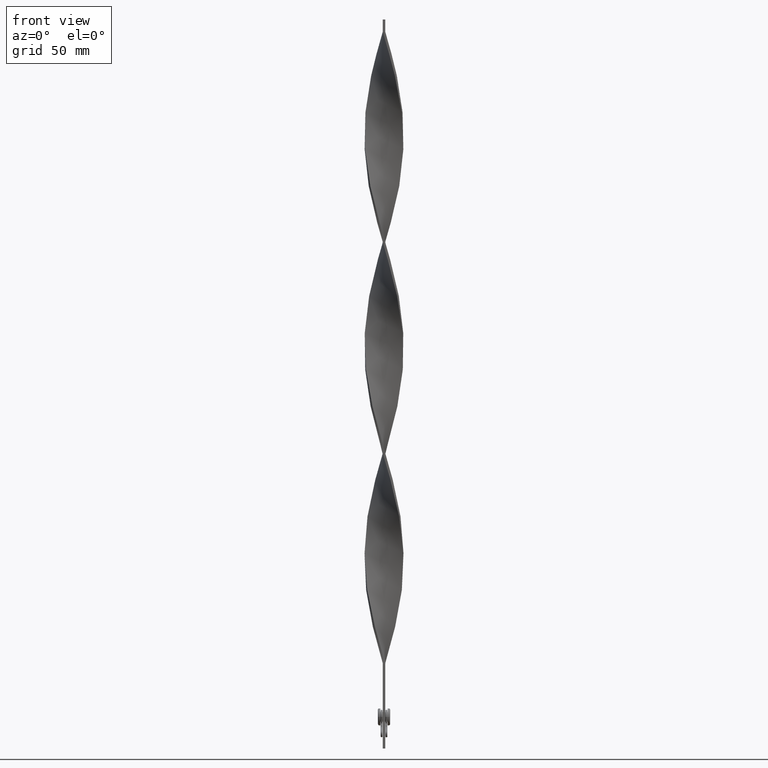
[diagram: clean part render]
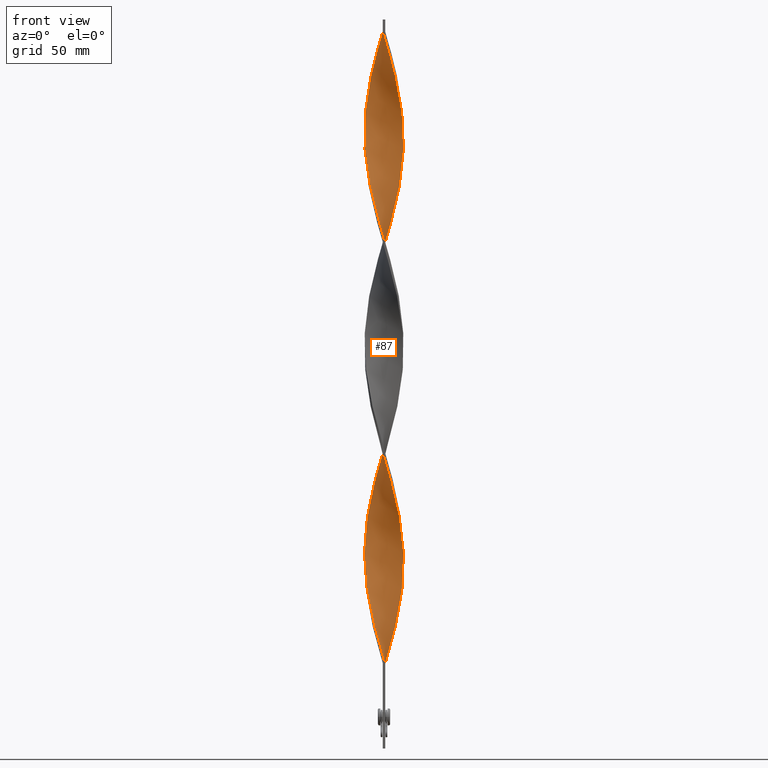
[diagram: same view with one face highlighted and labeled with its STEP entity id]
A machine part, front view. The second image highlights one B-rep face of the part: STEP entity #87.
In plain terms, the highlighted face is a freeform B-spline surface patch.
Its self-contained STEP definition (entity closure, byte-faithful):
#4 = CARTESIAN_POINT ( 'NONE',  ( -1.745319890619413172, -7.823289492240986576, 126.0000000000000000 ) ) ;
#10 = CARTESIAN_POINT ( 'NONE',  ( -7.605824193947274381, -2.607565948252402066, 154.1666666666667140 ) ) ;
#15 = CARTESIAN_POINT ( 'NONE',  ( -6.178243328853344707, -5.106790515527261043, 61.00000000000000000 ) ) ;
#29 = CARTESIAN_POINT ( 'NONE',  ( -7.999999999999998224, 0.4999999999999973910, 165.0000000000000000 ) ) ;
#53 = CARTESIAN_POINT ( 'NONE',  ( 8.039350853412310371, 0.1296136545969490406, 249.5000000000000000 ) ) ;
#59 = CARTESIAN_POINT ( 'NONE',  ( 3.186420735822189432, 7.355047443376719229, 134.6666666666666572 ) ) ;
#84 = CARTESIAN_POINT ( 'NONE',  ( 6.901056943637169816, 4.077427260010560772, 152.0000000000000000 ) ) ;
#87 = ADVANCED_FACE ( 'NONE', ( #2553 ), #4358, .T. ) ;
#106 = CARTESIAN_POINT ( 'NONE',  ( -5.106790515527261043, 6.178243328853343819, 104.3333333333333286 ) ) ;
#111 = CARTESIAN_POINT ( 'NONE',  ( -0.5000000000000018874, 8.000000000000001776, 295.0000000000000568 ) ) ;
#117 = CARTESIAN_POINT ( 'NONE',  ( 7.221957428453227301, -3.534302299652427148, 262.5000000000000000 ) ) ;
#125 = CARTESIAN_POINT ( 'NONE',  ( 6.580156458821112331, -4.620552220368685958, 266.8333333333333712 ) ) ;
#131 = CARTESIAN_POINT ( 'NONE',  ( 4.620552220368688623, -6.580156458821114995, 193.1666666666666856 ) ) ;
#144 = CARTESIAN_POINT ( 'NONE',  ( -4.620552220368690399, 6.580156458821114107, 106.5000000000000142 ) ) ;
#154 = CARTESIAN_POINT ( 'NONE',  ( 1.385649445451607509, 7.920097061150126905, 128.1666666666666856 ) ) ;
#174 = CARTESIAN_POINT ( 'NONE',  ( -5.593028810685833463, 5.776330198885576195, 275.5000000000000568 ) ) ;
#184 = CARTESIAN_POINT ( 'NONE',  ( -1.745319890619417835, 7.823289492240986576, 117.3333333333333286 ) ) ;
#192 = CARTESIAN_POINT ( 'NONE',  ( 7.960649146587690517, -1.129613654596946182, 80.50000000000000000 ) ) ;
#200 = CARTESIAN_POINT ( 'NONE',  ( -7.920097061150126905, 1.385649445451607953, 258.1666666666666288 ) ) ;
#214 = CARTESIAN_POINT ( 'NONE',  ( 0.7576315500242764012, 7.979723957281220414, 126.0000000000000000 ) ) ;
#220 = CARTESIAN_POINT ( 'NONE',  ( 7.979723957281215085, 0.7576315500242793988, 74.00000000000001421 ) ) ;
#224 = CARTESIAN_POINT ( 'NONE',  ( 7.960649146587690517, -1.129613654596946182, 80.50000000000000000 ) ) ;
#241 = CARTESIAN_POINT ( 'NONE',  ( 2.947664213147154655, 7.453943633173753192, 43.66666666666667140 ) ) ;
#247 = CARTESIAN_POINT ( 'NONE',  ( 5.776330198885574418, -5.593028810685828134, 97.83333333333334281 ) ) ;
#259 = CARTESIAN_POINT ( 'NONE',  ( -4.297773521152311815, -6.766028581145818066, 225.6666666666666572 ) ) ;
#264 = EDGE_CURVE ( 'NONE', #1612, #2399, #4509, .T. ) ;
#266 = CARTESIAN_POINT ( 'NONE',  ( 1.385649445451610395, -7.920097061150122464, 115.1666666666666714 ) ) ;
#272 = CARTESIAN_POINT ( 'NONE',  ( 5.106790515527257490, 6.178243328853342042, 52.33333333333333570 ) ) ;
#288 = CARTESIAN_POINT ( 'NONE',  ( 1.745319890619418723, -7.823289492240986576, 204.0000000000000000 ) ) ;
#296 = CARTESIAN_POINT ( 'NONE',  ( -1.996607696852005454, 7.762960627548700643, 199.6666666666666572 ) ) ;
#305 = CARTESIAN_POINT ( 'NONE',  ( -7.960649146587688740, 1.129613654596948846, 167.1666666666666572 ) ) ;
#317 = CARTESIAN_POINT ( 'NONE',  ( 3.534302299652435142, -7.221957428453227301, 197.5000000000000284 ) ) ;
#324 = CARTESIAN_POINT ( 'NONE',  ( -4.297773521152312703, 6.766028581145813625, 191.0000000000000000 ) ) ;
#329 = CARTESIAN_POINT ( 'NONE',  ( -3.534302299652426704, -7.221957428453228189, 132.5000000000000000 ) ) ;
#341 = CARTESIAN_POINT ( 'NONE',  ( 0.5000000000000008882, -8.000000000000001776, 208.3333333333333428 ) ) ;
#347 = CARTESIAN_POINT ( 'NONE',  ( -7.453943633173754968, 2.947664213147153767, 173.6666666666666572 ) ) ;
#354 = CARTESIAN_POINT ( 'NONE',  ( -3.765275523391983459, 7.104270692806153420, 193.1666666666666856 ) ) ;
#368 = CARTESIAN_POINT ( 'NONE',  ( 7.823289492240986576, 1.745319890619418279, 160.6666666666666572 ) ) ;
#375 = CARTESIAN_POINT ( 'NONE',  ( -0.1296136545969540088, 8.039350853412310371, 206.1666666666666572 ) ) ;
#381 = CARTESIAN_POINT ( 'NONE',  ( -7.685929837894283523, 2.361026126641877720, 171.5000000000000284 ) ) ;
#390 = CARTESIAN_POINT ( 'NONE',  ( -4.620552220368690399, 6.580156458821114107, 279.8333333333333144 ) ) ;
#396 = CARTESIAN_POINT ( 'NONE',  ( 5.593028810685829022, 5.776330198885574418, 227.8333333333333712 ) ) ;
#400 = CARTESIAN_POINT ( 'NONE',  ( -6.178243328853342931, 5.106790515527255714, 182.3333333333333144 ) ) ;
#403 = CARTESIAN_POINT ( 'NONE',  ( -3.186420735822190320, -7.355047443376719229, 48.00000000000000000 ) ) ;
#421 = CARTESIAN_POINT ( 'NONE',  ( 7.999999999999998224, -0.4999999999999983902, 251.6666666666666572 ) ) ;
#425 = CARTESIAN_POINT ( 'NONE',  ( -7.960649146587691405, -1.129613654596949512, 76.16666666666667140 ) ) ;
#453 = CARTESIAN_POINT ( 'NONE',  ( 1.996607696852001013, 7.762960627548705084, 130.3333333333333428 ) ) ;
#475 = CARTESIAN_POINT ( 'NONE',  ( 5.776330198885573530, 5.593028810685836127, 145.5000000000000853 ) ) ;
#480 = CARTESIAN_POINT ( 'NONE',  ( -5.106790515527261043, 6.178243328853343819, 277.6666666666666288 ) ) ;
#495 = CARTESIAN_POINT ( 'NONE',  ( 7.355047443376720118, -3.186420735822189432, 178.0000000000000000 ) ) ;
#514 = CARTESIAN_POINT ( 'NONE',  ( 7.920097061150121576, 1.385649445451609951, 245.1666666666666856 ) ) ;
#520 = CARTESIAN_POINT ( 'NONE',  ( -0.5000000000000018874, 8.000000000000001776, 121.6666666666666714 ) ) ;
#534 = CARTESIAN_POINT ( 'NONE',  ( -7.355047443376719229, 3.186420735822190320, 91.33333333333334281 ) ) ;
#539 = EDGE_CURVE ( 'NONE', #4611, #801, #748, .T. ) ;
#545 = CARTESIAN_POINT ( 'NONE',  ( -4.077427260010560772, 6.901056943637169816, 282.0000000000000000 ) ) ;
#555 = CARTESIAN_POINT ( 'NONE',  ( -6.766028581145818066, 4.297773521152310927, 95.66666666666665719 ) ) ;
#558 = DIRECTION ( 'NONE',  ( 1.219727444046192488E-16, -1.000000000000000000, 0.000000000000000000 ) ) ;
#561 = CARTESIAN_POINT ( 'NONE',  ( 7.920097061150122464, 1.385649445451609951, 71.83333333333332860 ) ) ;
#567 = CARTESIAN_POINT ( 'NONE',  ( 7.999999999999998224, -0.4999999999999983902, 78.33333333333334281 ) ) ;
#576 = CARTESIAN_POINT ( 'NONE',  ( -5.106790515527261043, 6.178243328853343819, 104.3333333333333286 ) ) ;
#589 = CARTESIAN_POINT ( 'NONE',  ( 6.766028581145814513, 4.297773521152310927, 61.00000000000000000 ) ) ;
#614 = CARTESIAN_POINT ( 'NONE',  ( 6.901056943637168040, -4.077427260010556331, 91.33333333333334281 ) ) ;
#626 = CARTESIAN_POINT ( 'NONE',  ( 6.010407640085657199, -5.303300858899105741, 186.6666666666666856 ) ) ;
#632 = CARTESIAN_POINT ( 'NONE',  ( 3.186420735822191208, -7.355047443376713900, 108.6666666666666572 ) ) ;
#637 = CARTESIAN_POINT ( 'NONE',  ( 7.605824193947275269, 2.607565948252398069, 67.50000000000000000 ) ) ;
#648 = CARTESIAN_POINT ( 'NONE',  ( 3.765275523391983015, 7.104270692806156973, 136.8333333333333428 ) ) ;
#655 = CARTESIAN_POINT ( 'NONE',  ( -6.178243328853342931, 5.106790515527255714, 182.3333333333333144 ) ) ;
#661 = CARTESIAN_POINT ( 'NONE',  ( 2.947664213147154655, 7.453943633173753192, 217.0000000000000000 ) ) ;
#677 = CARTESIAN_POINT ( 'NONE',  ( -4.830271518912640616, -6.427786469485480936, 227.8333333333333712 ) ) ;
#685 = CARTESIAN_POINT ( 'NONE',  ( 7.104270692806151644, 3.765275523391984791, 236.5000000000000284 ) ) ;
#692 = CARTESIAN_POINT ( 'NONE',  ( 7.355047443376713900, 3.186420735822190764, 238.6666666666666572 ) ) ;
#697 = CARTESIAN_POINT ( 'NONE',  ( -0.7576315500242775114, -7.979723957281220414, 39.33333333333333570 ) ) ;
#703 = CARTESIAN_POINT ( 'NONE',  ( 7.960649146587691405, 1.129613654596953953, 162.8333333333333428 ) ) ;
#710 = CARTESIAN_POINT ( 'NONE',  ( 6.427786469485478271, 4.830271518912638840, 232.1666666666666572 ) ) ;
#716 = CARTESIAN_POINT ( 'NONE',  ( -5.593028810685828134, -5.776330198885575307, 141.1666666666666288 ) ) ;
#722 = CARTESIAN_POINT ( 'NONE',  ( -6.580156458821114107, -4.620552220368690399, 63.16666666666669272 ) ) ;
#727 = CARTESIAN_POINT ( 'NONE',  ( 6.766028581145818954, -4.297773521152309151, 182.3333333333333144 ) ) ;
#734 = CARTESIAN_POINT ( 'NONE',  ( 7.960649146587690517, -1.129613654596946182, 253.8333333333333997 ) ) ;
#739 = CARTESIAN_POINT ( 'NONE',  ( 1.129613654596946626, 7.960649146587690517, 210.4999999999999716 ) ) ;
#748 =( BOUNDED_CURVE ( )  B_SPLINE_CURVE ( 2, ( #4536, #3806, #4192, #2410, #4166, #3091, #942, #2696, #1273, #1627, #3872, #1691, #2389, #4628, #1299, #4213, #3847, #1608, #2365, #892, #1959, #2722, #2436, #1341, #2341, #3419, #534, #920, #555, #3898, #2794, #3460, #576, #144, #3484, #3069, #3441, #4559, #184, #1648, #2023, #3136, #214, #1673, #2174, #4313, #4000, #648, #1014, #3980, #2921, #4653, #1712, #3178, #3584, #1815, #3630, #1371, #368, #703, #4289, #4370, #1036, #2072, #4754, #2461, #1740, #1765, #727, #1092, #626, #1067, #2823, #2098, #3923, #317, #3555, #3952, #288, #3280, #341, #2557, #3609, #3231, #1446, #3529, #3208, #4679, #259, #677, #1420, #3254, #4702, #1394, #1468, #4391, #2900, #2868, #2845, #1113, #4339, #2483, #2125, #2513, #2151, #1788, #4728, #2535, #1882, #3677, #2241, #797, #480, #390, #1857, #2967, #1511, #3700, #2643, #2992, #111 ),
 .UNSPECIFIED., .F., .T. ) 
 B_SPLINE_CURVE_WITH_KNOTS ( ( 3, 2, 2, 2, 2, 2, 2, 2, 2, 2, 2, 2, 2, 2, 2, 2, 2, 2, 2, 2, 2, 2, 2, 2, 2, 2, 2, 2, 2, 2, 2, 2, 2, 2, 2, 2, 2, 2, 2, 2, 2, 2, 2, 2, 2, 2, 2, 2, 2, 2, 2, 2, 2, 2, 2, 2, 2, 2, 2, 2, 3 ),
 ( 0.000000000000000000, 0.01250000000000000243, 0.02500000000000000486, 0.03749999999999999861, 0.05000000000000000971, 0.06250000000000000000, 0.07499999999999999722, 0.08749999999999998057, 0.1000000000000000194, 0.1125000000000000028, 0.1250000000000000000, 0.1375000000000000111, 0.1499999999999999944, 0.1625000000000000056, 0.1749999999999999611, 0.1875000000000000000, 0.2000000000000000389, 0.2124999999999999944, 0.2250000000000000056, 0.2374999999999999611, 0.2500000000000000000, 0.2625000000000000111, 0.2750000000000000222, 0.2874999999999999778, 0.2999999999999999889, 0.3125000000000000000, 0.3250000000000000111, 0.3375000000000000777, 0.3499999999999999223, 0.3624999999999999889, 0.3750000000000000000, 0.3875000000000000111, 0.4000000000000000777, 0.4124999999999999223, 0.4249999999999999889, 0.4375000000000000000, 0.4500000000000000111, 0.4625000000000000777, 0.4749999999999999223, 0.4874999999999999889, 0.5000000000000000000, 0.5124999999999999556, 0.5250000000000000222, 0.5374999999999999778, 0.5500000000000000444, 0.5625000000000000000, 0.5749999999999999556, 0.5875000000000000222, 0.5999999999999999778, 0.6125000000000000444, 0.6250000000000000000, 0.6374999999999999556, 0.6500000000000000222, 0.6624999999999999778, 0.6750000000000001554, 0.6875000000000000000, 0.6999999999999998446, 0.7125000000000000222, 0.7249999999999999778, 0.7375000000000001554, 0.7500000000000000000 ),
 .UNSPECIFIED. ) 
 CURVE ( )  GEOMETRIC_REPRESENTATION_ITEM ( )  RATIONAL_B_SPLINE_CURVE ( ( 1.000000000000000000, 0.9969173337331279638, 1.000000000000000000, 0.9969173337331279638, 1.000000000000000000, 0.9969173337331279638, 1.000000000000000000, 0.9969173337331279638, 1.000000000000000000, 0.9969173337331279638, 1.000000000000000000, 0.9969173337331279638, 1.000000000000000000, 0.9969173337331279638, 1.000000000000000000, 0.9969173337331279638, 1.000000000000000000, 0.9969173337331279638, 1.000000000000000000, 0.9969173337331279638, 1.000000000000000000, 0.9969173337331279638, 1.000000000000000000, 0.9969173337331279638, 1.000000000000000000, 0.9969173337331279638, 1.000000000000000000, 0.9969173337331279638, 1.000000000000000000, 0.9969173337331279638, 1.000000000000000000, 0.9969173337331279638, 1.000000000000000000, 0.9969173337331279638, 1.000000000000000000, 0.9969173337331279638, 1.000000000000000000, 0.9969173337331279638, 1.000000000000000000, 0.9969173337331279638, 1.000000000000000000, 0.9969173337331279638, 1.000000000000000000, 0.9969173337331279638, 1.000000000000000000, 0.9969173337331279638, 1.000000000000000000, 0.9969173337331279638, 1.000000000000000000, 0.9969173337331279638, 1.000000000000000000, 0.9969173337331279638, 1.000000000000000000, 0.9969173337331279638, 1.000000000000000000, 0.9969173337331279638, 1.000000000000000000, 0.9969173337331279638, 1.000000000000000000, 0.9969173337331279638, 1.000000000000000000, 0.9969173337331279638, 1.000000000000000000, 0.9969173337331279638, 1.000000000000000000, 0.9969173337331279638, 1.000000000000000000, 0.9969173337331279638, 1.000000000000000000, 0.9969173337331279638, 1.000000000000000000, 0.9969173337331279638, 1.000000000000000000, 0.9969173337331279638, 1.000000000000000000, 0.9969173337331279638, 1.000000000000000000, 0.9969173337331279638, 1.000000000000000000, 0.9969173337331279638, 1.000000000000000000, 0.9969173337331279638, 1.000000000000000000, 0.9969173337331279638, 1.000000000000000000, 0.9969173337331279638, 1.000000000000000000, 0.9969173337331279638, 1.000000000000000000, 0.9969173337331279638, 1.000000000000000000, 0.9969173337331279638, 1.000000000000000000, 0.9969173337331279638, 1.000000000000000000, 0.9969173337331279638, 1.000000000000000000, 0.9969173337331279638, 1.000000000000000000, 0.9969173337331279638, 1.000000000000000000, 0.9969173337331279638, 1.000000000000000000, 0.9969173337331279638, 1.000000000000000000, 0.9969173337331279638, 1.000000000000000000, 0.9969173337331279638, 1.000000000000000000, 0.9969173337331279638, 1.000000000000000000, 0.9969173337331279638, 1.000000000000000000, 0.9969173337331279638, 1.000000000000000000, 0.9969173337331279638, 1.000000000000000000, 0.9969173337331279638, 1.000000000000000000, 0.9969173337331279638, 1.000000000000000000 ) ) 
 REPRESENTATION_ITEM ( '' )  );
#759 = CARTESIAN_POINT ( 'NONE',  ( -7.762960627548700643, -1.996607696852004565, 156.3333333333333144 ) ) ;
#766 = CARTESIAN_POINT ( 'NONE',  ( -1.745319890619413172, -7.823289492240986576, 126.0000000000000000 ) ) ;
#771 = CARTESIAN_POINT ( 'NONE',  ( -5.303300858899107517, -6.010407640085656311, 56.66666666666667140 ) ) ;
#791 = CARTESIAN_POINT ( 'NONE',  ( -4.297773521152311815, -6.766028581145818066, 52.33333333333333570 ) ) ;
#797 = CARTESIAN_POINT ( 'NONE',  ( -5.593028810685833463, 5.776330198885576195, 275.5000000000000000 ) ) ;
#801 = VERTEX_POINT ( 'NONE', #2669 ) ;
#814 = CARTESIAN_POINT ( 'NONE',  ( 0.5000000000000008882, -8.000000000000001776, 208.3333333333333428 ) ) ;
#840 = CARTESIAN_POINT ( 'NONE',  ( -2.361026126641886158, 7.685929837894284411, 115.1666666666666714 ) ) ;
#861 = CARTESIAN_POINT ( 'NONE',  ( 0.1296136545969458487, 8.039350853412313924, 123.8333333333333570 ) ) ;
#871 = CARTESIAN_POINT ( 'NONE',  ( 4.830271518912639728, -6.427786469485478271, 275.5000000000000000 ) ) ;
#876 = CARTESIAN_POINT ( 'NONE',  ( 1.996607696852004121, -7.762960627548700643, 286.3333333333333144 ) ) ;
#880 = CARTESIAN_POINT ( 'NONE',  ( -4.297773521152311815, -6.766028581145818066, 225.6666666666666572 ) ) ;
#892 = CARTESIAN_POINT ( 'NONE',  ( -7.960649146587691405, -1.129613654596949290, 76.16666666666667140 ) ) ;
#899 = CARTESIAN_POINT ( 'NONE',  ( 7.685929837894281746, -2.361026126641882161, 84.83333333333335702 ) ) ;
#906 = CARTESIAN_POINT ( 'NONE',  ( 2.947664213147159540, -7.453943633173756744, 199.6666666666666572 ) ) ;
#920 = CARTESIAN_POINT ( 'NONE',  ( -7.104270692806156973, 3.765275523391983903, 93.50000000000000000 ) ) ;
#926 = CARTESIAN_POINT ( 'NONE',  ( 7.104270692806151644, 3.765275523391984791, 63.16666666666669272 ) ) ;
#931 = CARTESIAN_POINT ( 'NONE',  ( 7.221957428453227301, -3.534302299652427148, 89.16666666666668561 ) ) ;
#942 = CARTESIAN_POINT ( 'NONE',  ( -3.186420735822190320, -7.355047443376719229, 48.00000000000000000 ) ) ;
#948 = CARTESIAN_POINT ( 'NONE',  ( 6.010407640085652758, 5.303300858899105741, 56.66666666666667140 ) ) ;
#953 = CARTESIAN_POINT ( 'NONE',  ( -5.106790515527261043, 6.178243328853343819, 277.6666666666666288 ) ) ;
#969 = CARTESIAN_POINT ( 'NONE',  ( 7.605824193947276157, 2.607565948252398069, 67.50000000000000000 ) ) ;
#975 = CARTESIAN_POINT ( 'NONE',  ( -7.355047443376719229, 3.186420735822190320, 264.6666666666666856 ) ) ;
#997 = CARTESIAN_POINT ( 'NONE',  ( 5.776330198885574418, -5.593028810685828134, 97.83333333333334281 ) ) ;
#1002 = CARTESIAN_POINT ( 'NONE',  ( -1.745319890619417835, 7.823289492240986576, 290.6666666666666288 ) ) ;
#1014 = CARTESIAN_POINT ( 'NONE',  ( 4.297773521152310927, 6.766028581145818066, 139.0000000000000000 ) ) ;
#1020 = CARTESIAN_POINT ( 'NONE',  ( -0.4999999999999979461, -7.999999999999998224, 121.6666666666666714 ) ) ;
#1025 = CARTESIAN_POINT ( 'NONE',  ( -6.178243328853344707, -5.106790515527261043, 234.3333333333333428 ) ) ;
#1036 = CARTESIAN_POINT ( 'NONE',  ( 7.979723957281220414, -0.7576315500242759571, 169.3333333333333428 ) ) ;
#1044 = CARTESIAN_POINT ( 'NONE',  ( 4.620552220368685958, 6.580156458821112331, 223.5000000000000284 ) ) ;
#1051 = CARTESIAN_POINT ( 'NONE',  ( -7.979723957281213309, -0.7576315500242803980, 160.6666666666666572 ) ) ;
#1067 = CARTESIAN_POINT ( 'NONE',  ( 5.593028810685836127, -5.776330198885572642, 188.8333333333333144 ) ) ;
#1076 = CARTESIAN_POINT ( 'NONE',  ( 7.355047443376713900, 3.186420735822190764, 238.6666666666666572 ) ) ;
#1081 = CARTESIAN_POINT ( 'NONE',  ( 7.762960627548700643, 1.996607696852003677, 243.0000000000000000 ) ) ;
#1086 = CARTESIAN_POINT ( 'NONE',  ( -8.039350853412313924, 0.1296136545969462928, 80.50000000000000000 ) ) ;
#1092 = CARTESIAN_POINT ( 'NONE',  ( 6.427786469485480048, -4.830271518912642392, 184.5000000000000000 ) ) ;
#1094 = CARTESIAN_POINT ( 'NONE',  ( -0.5000000000000005551, 2.666666666666668739, 295.0000000000000568 ) ) ;
#1098 = CARTESIAN_POINT ( 'NONE',  ( 7.979723957281215085, 0.7576315500242793988, 247.3333333333333144 ) ) ;
#1103 = CARTESIAN_POINT ( 'NONE',  ( 6.010407640085652758, 5.303300858899105741, 229.9999999999999716 ) ) ;
#1113 = CARTESIAN_POINT ( 'NONE',  ( -7.960649146587691405, -1.129613654596949290, 249.5000000000000284 ) ) ;
#1119 = CARTESIAN_POINT ( 'NONE',  ( -5.106790515527256602, -6.178243328853342042, 139.0000000000000000 ) ) ;
#1125 = CARTESIAN_POINT ( 'NONE',  ( -6.010407640085651870, -5.303300858899106629, 143.3333333333333144 ) ) ;
#1129 = CARTESIAN_POINT ( 'NONE',  ( -7.823289492240988352, -1.745319890619417613, 74.00000000000001421 ) ) ;
#1143 = CARTESIAN_POINT ( 'NONE',  ( 3.186420735822191208, -7.355047443376713900, 282.0000000000000000 ) ) ;
#1149 = CARTESIAN_POINT ( 'NONE',  ( -7.920097061150123352, -1.385649445451607509, 158.5000000000000000 ) ) ;
#1175 = CARTESIAN_POINT ( 'NONE',  ( 6.178243328853343819, 5.106790515527261043, 147.6666666666666572 ) ) ;
#1197 = CARTESIAN_POINT ( 'NONE',  ( 7.605824193947278822, -2.607565948252398957, 175.8333333333333712 ) ) ;
#1219 = CARTESIAN_POINT ( 'NONE',  ( 5.776330198885574418, -5.593028810685828134, 271.1666666666666288 ) ) ;
#1226 = CARTESIAN_POINT ( 'NONE',  ( 2.607565948252396293, 7.605824193947280598, 132.5000000000000000 ) ) ;
#1239 = CARTESIAN_POINT ( 'NONE',  ( 6.901056943637168040, -4.077427260010556331, 264.6666666666666856 ) ) ;
#1243 = CARTESIAN_POINT ( 'NONE',  ( 8.000000000000001776, 0.5000000000000024425, 165.0000000000000000 ) ) ;
#1263 = CARTESIAN_POINT ( 'NONE',  ( 5.106790515527262819, -6.178243328853343819, 191.0000000000000000 ) ) ;
#1273 = CARTESIAN_POINT ( 'NONE',  ( -4.297773521152311815, -6.766028581145818066, 52.33333333333333570 ) ) ;
#1280 = CARTESIAN_POINT ( 'NONE',  ( 4.620552220368685958, 6.580156458821112331, 50.16666666666667140 ) ) ;
#1286 = CARTESIAN_POINT ( 'NONE',  ( -8.039350853412313924, 0.1296136545969462928, 253.8333333333334281 ) ) ;
#1299 = CARTESIAN_POINT ( 'NONE',  ( -6.901056943637169816, -4.077427260010559884, 65.33333333333332860 ) ) ;
#1304 = CARTESIAN_POINT ( 'NONE',  ( 7.453943633173754080, -2.947664213147154655, 87.00000000000000000 ) ) ;
#1309 = CARTESIAN_POINT ( 'NONE',  ( -7.979723957281220414, 0.7576315500242770673, 256.0000000000000000 ) ) ;
#1331 = CARTESIAN_POINT ( 'NONE',  ( 1.129613654596946626, 7.960649146587690517, 37.16666666666667140 ) ) ;
#1341 = CARTESIAN_POINT ( 'NONE',  ( -7.920097061150127793, 1.385649445451607731, 84.83333333333335702 ) ) ;
#1358 = CARTESIAN_POINT ( 'NONE',  ( -2.361026126641886158, 7.685929837894284411, 288.4999999999999432 ) ) ;
#1371 = CARTESIAN_POINT ( 'NONE',  ( 7.685929837894285299, 2.361026126641883049, 158.5000000000000000 ) ) ;
#1377 = CARTESIAN_POINT ( 'NONE',  ( 5.106790515527257490, 6.178243328853342042, 225.6666666666666572 ) ) ;
#1382 = CARTESIAN_POINT ( 'NONE',  ( 7.453943633173754080, -2.947664213147154655, 87.00000000000000000 ) ) ;
#1394 = CARTESIAN_POINT ( 'NONE',  ( -6.580156458821114107, -4.620552220368690399, 236.5000000000000284 ) ) ;
#1400 = CARTESIAN_POINT ( 'NONE',  ( 2.361026126641882161, 7.685929837894280858, 214.8333333333333428 ) ) ;
#1406 = CARTESIAN_POINT ( 'NONE',  ( 1.996607696852004121, -7.762960627548700643, 113.0000000000000000 ) ) ;
#1420 = CARTESIAN_POINT ( 'NONE',  ( -5.303300858899107517, -6.010407640085656311, 229.9999999999999716 ) ) ;
#1425 = CARTESIAN_POINT ( 'NONE',  ( -4.620552220368685070, -6.580156458821112331, 136.8333333333333428 ) ) ;
#1431 = CARTESIAN_POINT ( 'NONE',  ( -4.297773521152312703, 6.766028581145813625, 191.0000000000000000 ) ) ;
#1438 = CARTESIAN_POINT ( 'NONE',  ( -6.901056943637169816, -4.077427260010559884, 65.33333333333332860 ) ) ;
#1446 = CARTESIAN_POINT ( 'NONE',  ( -1.996607696852001901, -7.762960627548704196, 217.0000000000000000 ) ) ;
#1448 = CARTESIAN_POINT ( 'NONE',  ( -0.5000000000000018874, 8.000000000000001776, 295.0000000000000568 ) ) ;
#1453 = CARTESIAN_POINT ( 'NONE',  ( 7.762960627548700643, 1.996607696852003677, 243.0000000000000000 ) ) ;
#1458 = CARTESIAN_POINT ( 'NONE',  ( 4.620552220368685958, 6.580156458821112331, 223.5000000000000284 ) ) ;
#1468 = CARTESIAN_POINT ( 'NONE',  ( -6.901056943637169816, -4.077427260010559884, 238.6666666666666572 ) ) ;
#1474 = CARTESIAN_POINT ( 'NONE',  ( -4.830271518912643280, 6.427786469485474719, 188.8333333333333144 ) ) ;
#1479 = CARTESIAN_POINT ( 'NONE',  ( -2.947664213147153767, -7.453943633173754080, 130.3333333333333428 ) ) ;
#1500 = CARTESIAN_POINT ( 'NONE',  ( -1.996607696852005454, 7.762960627548700643, 199.6666666666666572 ) ) ;
#1511 = CARTESIAN_POINT ( 'NONE',  ( -2.947664213147158208, 7.453943633173756744, 286.3333333333333144 ) ) ;
#1526 = CARTESIAN_POINT ( 'NONE',  ( 7.823289492240986576, -1.745319890619414060, 256.0000000000000000 ) ) ;
#1531 = CARTESIAN_POINT ( 'NONE',  ( -7.104270692806157861, 3.765275523391984347, 93.49999999999998579 ) ) ;
#1541 = CARTESIAN_POINT ( 'NONE',  ( 2.607565948252398513, -7.605824193947276157, 284.1666666666667425 ) ) ;
#1545 = CARTESIAN_POINT ( 'NONE',  ( 7.453943633173754080, -2.947664213147154655, 260.3333333333333144 ) ) ;
#1550 = CARTESIAN_POINT ( 'NONE',  ( -5.593028810685833463, 5.776330198885576195, 102.1666666666666572 ) ) ;
#1571 = CARTESIAN_POINT ( 'NONE',  ( -1.129613654596950179, 7.960649146587691405, 119.5000000000000142 ) ) ;
#1585 = CARTESIAN_POINT ( 'NONE',  ( 1.385649445451610395, -7.920097061150122464, 288.5000000000000000 ) ) ;
#1591 = CARTESIAN_POINT ( 'NONE',  ( 7.685929837894281746, -2.361026126641882161, 258.1666666666666288 ) ) ;
#1598 = CARTESIAN_POINT ( 'NONE',  ( -6.427786469485481824, 4.830271518912640616, 97.83333333333334281 ) ) ;
#1608 = CARTESIAN_POINT ( 'NONE',  ( -7.685929837894284411, -2.361026126641885714, 71.83333333333332860 ) ) ;
#1612 = VERTEX_POINT ( 'NONE', #3586 ) ;
#1618 = CARTESIAN_POINT ( 'NONE',  ( 8.039350853412313924, -0.1296136545969490406, 167.1666666666666572 ) ) ;
#1627 = CARTESIAN_POINT ( 'NONE',  ( -4.830271518912640616, -6.427786469485480936, 54.50000000000001421 ) ) ;
#1634 = EDGE_CURVE ( 'NONE', #801, #2399, #4138, .T. ) ;
#1638 = CARTESIAN_POINT ( 'NONE',  ( 3.534302299652427592, 7.221957428453227301, 45.83333333333333570 ) ) ;
#1648 = CARTESIAN_POINT ( 'NONE',  ( -1.129613654596949956, 7.960649146587691405, 119.5000000000000142 ) ) ;
#1654 = CARTESIAN_POINT ( 'NONE',  ( 7.823289492240986576, -1.745319890619414060, 82.66666666666667140 ) ) ;
#1661 = CARTESIAN_POINT ( 'NONE',  ( -7.960649146587691405, -1.129613654596949512, 249.5000000000000000 ) ) ;
#1673 = CARTESIAN_POINT ( 'NONE',  ( 1.385649445451607287, 7.920097061150127793, 128.1666666666666856 ) ) ;
#1678 = CARTESIAN_POINT ( 'NONE',  ( 4.077427260010556331, 6.901056943637168040, 48.00000000000000000 ) ) ;
#1683 = CARTESIAN_POINT ( 'NONE',  ( 7.823289492240986576, -1.745319890619414060, 82.66666666666667140 ) ) ;
#1691 = CARTESIAN_POINT ( 'NONE',  ( -5.776330198885576195, -5.593028810685832575, 58.83333333333334281 ) ) ;
#1698 = CARTESIAN_POINT ( 'NONE',  ( 7.999999999999998224, -0.4999999999999983902, 78.33333333333334281 ) ) ;
#1702 = CARTESIAN_POINT ( 'NONE',  ( 5.303300858899105741, -6.010407640085651870, 100.0000000000000000 ) ) ;
#1712 = CARTESIAN_POINT ( 'NONE',  ( 6.178243328853343819, 5.106790515527261043, 147.6666666666666572 ) ) ;
#1719 = CARTESIAN_POINT ( 'NONE',  ( 0.7576315500242799539, -7.979723957281213309, 117.3333333333333286 ) ) ;
#1726 = CARTESIAN_POINT ( 'NONE',  ( 7.685929837894281746, -2.361026126641882161, 84.83333333333335702 ) ) ;
#1740 = CARTESIAN_POINT ( 'NONE',  ( 7.355047443376720118, -3.186420735822189432, 178.0000000000000000 ) ) ;
#1748 = CARTESIAN_POINT ( 'NONE',  ( -1.385649445451607731, 7.920097061150124240, 201.8333333333333712 ) ) ;
#1753 = CARTESIAN_POINT ( 'NONE',  ( 1.385649445451610395, -7.920097061150121576, 115.1666666666666714 ) ) ;
#1765 = CARTESIAN_POINT ( 'NONE',  ( 7.104270692806158749, -3.765275523391980794, 180.1666666666666572 ) ) ;
#1771 = CARTESIAN_POINT ( 'NONE',  ( -3.765275523391983015, 7.104270692806152532, 193.1666666666666856 ) ) ;
#1777 = CARTESIAN_POINT ( 'NONE',  ( -5.303300858899107517, 6.010407640085650982, 186.6666666666666856 ) ) ;
#1788 = CARTESIAN_POINT ( 'NONE',  ( -7.605824193947280598, 2.607565948252396737, 262.5000000000000000 ) ) ;
#1794 = CARTESIAN_POINT ( 'NONE',  ( 7.605824193947276157, 2.607565948252398069, 240.8333333333333428 ) ) ;
#1800 = CARTESIAN_POINT ( 'NONE',  ( -7.453943633173754968, 2.947664213147153767, 173.6666666666666572 ) ) ;
#1808 = CARTESIAN_POINT ( 'NONE',  ( -7.920097061150126905, 1.385649445451607953, 84.83333333333335702 ) ) ;
#1815 = CARTESIAN_POINT ( 'NONE',  ( 7.221957428453227301, 3.534302299652434698, 154.1666666666667140 ) ) ;
#1820 = VECTOR ( 'NONE', #558, 1000.000000000000000 ) ;
#1823 = CARTESIAN_POINT ( 'NONE',  ( 7.823289492240986576, -1.745319890619414060, 256.0000000000000000 ) ) ;
#1828 = CARTESIAN_POINT ( 'NONE',  ( 1.745319890619414505, 7.823289492240986576, 212.6666666666666572 ) ) ;
#1845 = CARTESIAN_POINT ( 'NONE',  ( 6.766028581145814513, 4.297773521152310927, 234.3333333333333428 ) ) ;
#1850 = CARTESIAN_POINT ( 'NONE',  ( 3.186420735822191208, -7.355047443376713900, 108.6666666666666572 ) ) ;
#1853 = CARTESIAN_POINT ( 'NONE',  ( -4.830271518912641504, -6.427786469485481824, 54.50000000000001421 ) ) ;
#1857 = CARTESIAN_POINT ( 'NONE',  ( -4.077427260010560772, 6.901056943637169816, 282.0000000000000000 ) ) ;
#1876 = CARTESIAN_POINT ( 'NONE',  ( 7.979723957281220414, -0.7576315500242759571, 169.3333333333333428 ) ) ;
#1882 = CARTESIAN_POINT ( 'NONE',  ( -6.766028581145818066, 4.297773521152310927, 269.0000000000000000 ) ) ;
#1904 = CARTESIAN_POINT ( 'NONE',  ( -1.385649445451608397, -7.920097061150126905, 214.8333333333333428 ) ) ;
#1916 = CARTESIAN_POINT ( 'NONE',  ( 5.303300858899105741, -6.010407640085651870, 273.3333333333333144 ) ) ;
#1921 = CARTESIAN_POINT ( 'NONE',  ( 7.960649146587690517, -1.129613654596946182, 253.8333333333334281 ) ) ;
#1925 = CARTESIAN_POINT ( 'NONE',  ( 7.221957428453227301, 3.534302299652434698, 154.1666666666667140 ) ) ;
#1936 = CARTESIAN_POINT ( 'NONE',  ( 6.580156458821112331, -4.620552220368685958, 266.8333333333333712 ) ) ;
#1945 = CARTESIAN_POINT ( 'NONE',  ( 3.765275523391983459, 7.104270692806157861, 136.8333333333333144 ) ) ;
#1959 = CARTESIAN_POINT ( 'NONE',  ( -8.000000000000001776, -0.5000000000000014433, 78.33333333333334281 ) ) ;
#1972 = CARTESIAN_POINT ( 'NONE',  ( -6.766028581145818066, 4.297773521152310927, 95.66666666666665719 ) ) ;
#1993 = CARTESIAN_POINT ( 'NONE',  ( 7.979723957281215085, 0.7576315500242793988, 74.00000000000001421 ) ) ;
#2008 = CARTESIAN_POINT ( 'NONE',  ( 8.039350853412308595, 0.1296136545969490128, 76.16666666666667140 ) ) ;
#2013 = CARTESIAN_POINT ( 'NONE',  ( 6.580156458821112331, -4.620552220368685958, 93.49999999999998579 ) ) ;
#2023 = CARTESIAN_POINT ( 'NONE',  ( -0.5000000000000018874, 8.000000000000001776, 121.6666666666666714 ) ) ;
#2036 = CARTESIAN_POINT ( 'NONE',  ( 7.104270692806152532, 3.765275523391985235, 63.16666666666669272 ) ) ;
#2060 = CARTESIAN_POINT ( 'NONE',  ( 2.361026126641882161, 7.685929837894280858, 41.50000000000001421 ) ) ;
#2072 = CARTESIAN_POINT ( 'NONE',  ( 7.920097061150129569, -1.385649445451603290, 171.5000000000000000 ) ) ;
#2079 = CARTESIAN_POINT ( 'NONE',  ( 2.607565948252398513, -7.605824193947276157, 110.8333333333333570 ) ) ;
#2085 = CARTESIAN_POINT ( 'NONE',  ( 7.762960627548700643, 1.996607696852003677, 69.66666666666667140 ) ) ;
#2098 = CARTESIAN_POINT ( 'NONE',  ( 4.620552220368688623, -6.580156458821114995, 193.1666666666666856 ) ) ;
#2105 = CARTESIAN_POINT ( 'NONE',  ( -7.685929837894283523, 2.361026126641877720, 171.5000000000000000 ) ) ;
#2110 = CARTESIAN_POINT ( 'NONE',  ( 0.4999999999999989453, 7.999999999999998224, 208.3333333333333428 ) ) ;
#2125 = CARTESIAN_POINT ( 'NONE',  ( -7.979723957281220414, 0.7576315500242770673, 256.0000000000000000 ) ) ;
#2132 = CARTESIAN_POINT ( 'NONE',  ( -6.766028581145813625, -4.297773521152311815, 147.6666666666666572 ) ) ;
#2138 = CARTESIAN_POINT ( 'NONE',  ( 5.106790515527257490, 6.178243328853342042, 225.6666666666666572 ) ) ;
#2151 = CARTESIAN_POINT ( 'NONE',  ( -7.762960627548705084, 1.996607696852001457, 260.3333333333333144 ) ) ;
#2157 = CARTESIAN_POINT ( 'NONE',  ( 4.077427260010556331, 6.901056943637168040, 221.3333333333333144 ) ) ;
#2162 = CARTESIAN_POINT ( 'NONE',  ( -6.901056943637168928, 4.077427260010555443, 178.0000000000000000 ) ) ;
#2167 = CARTESIAN_POINT ( 'NONE',  ( -3.765275523391984347, -7.104270692806157861, 50.16666666666667140 ) ) ;
#2174 = CARTESIAN_POINT ( 'NONE',  ( 1.996607696852001013, 7.762960627548705084, 130.3333333333333428 ) ) ;
#2180 = CARTESIAN_POINT ( 'NONE',  ( -6.580156458821114107, 4.620552220368682406, 180.1666666666666572 ) ) ;
#2185 = CARTESIAN_POINT ( 'NONE',  ( 6.427786469485478271, 4.830271518912639728, 232.1666666666666288 ) ) ;
#2193 = CARTESIAN_POINT ( 'NONE',  ( -1.996607696852001901, -7.762960627548704196, 43.66666666666667140 ) ) ;
#2208 = CARTESIAN_POINT ( 'NONE',  ( -7.221957428453226413, 3.534302299652429369, 175.8333333333333712 ) ) ;
#2213 = CARTESIAN_POINT ( 'NONE',  ( -7.104270692806154308, -3.765275523391982571, 149.8333333333333712 ) ) ;
#2232 = CARTESIAN_POINT ( 'NONE',  ( 4.830271518912640616, -6.427786469485478271, 275.5000000000000568 ) ) ;
#2236 = CARTESIAN_POINT ( 'NONE',  ( -7.453943633173756744, -2.947664213147157763, 69.66666666666667140 ) ) ;
#2241 = CARTESIAN_POINT ( 'NONE',  ( -6.010407640085656311, 5.303300858899106629, 273.3333333333333144 ) ) ;
#2249 = CARTESIAN_POINT ( 'NONE',  ( 6.901056943637168040, -4.077427260010556331, 264.6666666666666856 ) ) ;
#2260 = CARTESIAN_POINT ( 'NONE',  ( -0.7576315500242775114, -7.979723957281220414, 212.6666666666666572 ) ) ;
#2286 = CARTESIAN_POINT ( 'NONE',  ( -3.186420735822190320, -7.355047443376719229, 221.3333333333333144 ) ) ;
#2302 = CARTESIAN_POINT ( 'NONE',  ( 7.979723957281215085, 0.7576315500242793988, 247.3333333333333144 ) ) ;
#2307 = CARTESIAN_POINT ( 'NONE',  ( 7.453943633173756744, 2.947664213147158652, 156.3333333333333144 ) ) ;
#2323 = CARTESIAN_POINT ( 'NONE',  ( 3.186420735822191208, -7.355047443376713900, 282.0000000000000000 ) ) ;
#2327 = CARTESIAN_POINT ( 'NONE',  ( -4.830271518912641504, -6.427786469485481824, 227.8333333333333428 ) ) ;
#2341 = CARTESIAN_POINT ( 'NONE',  ( -7.762960627548705084, 1.996607696852001457, 87.00000000000000000 ) ) ;
#2348 = CARTESIAN_POINT ( 'NONE',  ( 5.593028810685829022, 5.776330198885574418, 54.50000000000001421 ) ) ;
#2355 = CARTESIAN_POINT ( 'NONE',  ( 1.129613654596954397, -7.960649146587691405, 206.1666666666666572 ) ) ;
#2365 = CARTESIAN_POINT ( 'NONE',  ( -7.823289492240988352, -1.745319890619417613, 74.00000000000001421 ) ) ;
#2371 = CARTESIAN_POINT ( 'NONE',  ( 1.129613654596946626, 7.960649146587690517, 37.16666666666667140 ) ) ;
#2377 = CARTESIAN_POINT ( 'NONE',  ( -7.221957428453229966, -3.534302299652431145, 240.8333333333333428 ) ) ;
#2389 = CARTESIAN_POINT ( 'NONE',  ( -6.178243328853344707, -5.106790515527261043, 61.00000000000000000 ) ) ;
#2399 = VERTEX_POINT ( 'NONE', #3931 ) ;
#2400 = CARTESIAN_POINT ( 'NONE',  ( 6.010407640085652758, 5.303300858899105741, 56.66666666666667140 ) ) ;
#2410 = CARTESIAN_POINT ( 'NONE',  ( -1.385649445451608175, -7.920097061150127793, 41.50000000000000711 ) ) ;
#2417 = CARTESIAN_POINT ( 'NONE',  ( 4.297773521152311815, -6.766028581145813625, 104.3333333333333286 ) ) ;
#2423 = CARTESIAN_POINT ( 'NONE',  ( -6.010407640085656311, 5.303300858899106629, 273.3333333333333144 ) ) ;
#2436 = CARTESIAN_POINT ( 'NONE',  ( -7.979723957281220414, 0.7576315500242770673, 82.66666666666667140 ) ) ;
#2448 = CARTESIAN_POINT ( 'NONE',  ( 2.947664213147154655, 7.453943633173753192, 43.66666666666667140 ) ) ;
#2461 = CARTESIAN_POINT ( 'NONE',  ( 7.605824193947279710, -2.607565948252398957, 175.8333333333333712 ) ) ;
#2467 = CARTESIAN_POINT ( 'NONE',  ( -5.593028810685828134, -5.776330198885575307, 141.1666666666666572 ) ) ;
#2471 = CARTESIAN_POINT ( 'NONE',  ( 4.297773521152311815, -6.766028581145813625, 104.3333333333333286 ) ) ;
#2483 = CARTESIAN_POINT ( 'NONE',  ( -8.039350853412313924, 0.1296136545969462928, 253.8333333333333997 ) ) ;
#2491 = CARTESIAN_POINT ( 'NONE',  ( -6.010407640085651870, -5.303300858899106629, 143.3333333333333144 ) ) ;
#2498 = CARTESIAN_POINT ( 'NONE',  ( -0.7576315500242808421, 7.979723957281215085, 204.0000000000000000 ) ) ;
#2513 = CARTESIAN_POINT ( 'NONE',  ( -7.920097061150127793, 1.385649445451607731, 258.1666666666666288 ) ) ;
#2519 = CARTESIAN_POINT ( 'NONE',  ( -2.947664213147153767, -7.453943633173754080, 130.3333333333333428 ) ) ;
#2525 = CARTESIAN_POINT ( 'NONE',  ( 3.534302299652427592, 7.221957428453227301, 219.1666666666666856 ) ) ;
#2530 = CARTESIAN_POINT ( 'NONE',  ( -7.979723957281220414, 0.7576315500242770673, 82.66666666666667140 ) ) ;
#2535 = CARTESIAN_POINT ( 'NONE',  ( -7.104270692806156973, 3.765275523391983903, 266.8333333333333712 ) ) ;
#2537 = CARTESIAN_POINT ( 'NONE',  ( -0.4999999999999992784, -2.666666666666665186, 295.0000000000000568 ) ) ;
#2542 = CARTESIAN_POINT ( 'NONE',  ( 8.039350853412308595, 0.1296136545969490128, 249.5000000000000284 ) ) ;
#2547 = CARTESIAN_POINT ( 'NONE',  ( -4.077427260010555443, -6.901056943637168040, 134.6666666666666572 ) ) ;
#2553 = FACE_OUTER_BOUND ( 'NONE', #4317, .T. ) ;
#2557 = CARTESIAN_POINT ( 'NONE',  ( -0.1296136545969468479, -8.039350853412313924, 210.5000000000000000 ) ) ;
#2564 = CARTESIAN_POINT ( 'NONE',  ( 3.534302299652427592, 7.221957428453227301, 219.1666666666666856 ) ) ;
#2569 = CARTESIAN_POINT ( 'NONE',  ( -2.361026126641881273, -7.685929837894281746, 128.1666666666666856 ) ) ;
#2589 = CARTESIAN_POINT ( 'NONE',  ( 4.297773521152311815, -6.766028581145813625, 277.6666666666666288 ) ) ;
#2594 = CARTESIAN_POINT ( 'NONE',  ( 0.1296136545969495957, -8.039350853412310371, 292.8333333333332575 ) ) ;
#2616 = CARTESIAN_POINT ( 'NONE',  ( 6.010407640085657199, -5.303300858899105741, 186.6666666666666856 ) ) ;
#2638 = CARTESIAN_POINT ( 'NONE',  ( -1.996607696852001901, -7.762960627548704196, 217.0000000000000000 ) ) ;
#2643 = CARTESIAN_POINT ( 'NONE',  ( -1.745319890619417835, 7.823289492240986576, 290.6666666666666288 ) ) ;
#2660 = CARTESIAN_POINT ( 'NONE',  ( 2.607565948252398513, -7.605824193947275269, 284.1666666666667425 ) ) ;
#2665 = CARTESIAN_POINT ( 'NONE',  ( 6.580156458821115883, 4.620552220368687735, 149.8333333333333712 ) ) ;
#2669 = CARTESIAN_POINT ( 'NONE',  ( -0.5000000000000018874, 8.000000000000001776, 295.0000000000000568 ) ) ;
#2684 = CARTESIAN_POINT ( 'NONE',  ( 4.830271518912640616, 6.427786469485483600, 141.1666666666666288 ) ) ;
#2696 = CARTESIAN_POINT ( 'NONE',  ( -3.765275523391983903, -7.104270692806156973, 50.16666666666667140 ) ) ;
#2701 = CARTESIAN_POINT ( 'NONE',  ( 3.534302299652427592, 7.221957428453227301, 45.83333333333333570 ) ) ;
#2706 = CARTESIAN_POINT ( 'NONE',  ( -7.355047443376719229, 3.186420735822190320, 91.33333333333334281 ) ) ;
#2722 = CARTESIAN_POINT ( 'NONE',  ( -8.039350853412313924, 0.1296136545969462928, 80.50000000000000000 ) ) ;
#2728 = CARTESIAN_POINT ( 'NONE',  ( 5.106790515527257490, 6.178243328853342042, 52.33333333333333570 ) ) ;
#2734 = ORIENTED_EDGE ( 'NONE', *, *, #264, .T. ) ;
#2735 = CARTESIAN_POINT ( 'NONE',  ( -7.823289492240988352, -1.745319890619417613, 247.3333333333333144 ) ) ;
#2755 = CARTESIAN_POINT ( 'NONE',  ( 3.765275523391984791, -7.104270692806151644, 106.5000000000000142 ) ) ;
#2760 = CARTESIAN_POINT ( 'NONE',  ( -7.453943633173756744, -2.947664213147157763, 243.0000000000000000 ) ) ;
#2772 = CARTESIAN_POINT ( 'NONE',  ( 0.4999999999999989453, 7.999999999999998224, 35.00000000000000000 ) ) ;
#2775 = CARTESIAN_POINT ( 'NONE',  ( 7.221957428453227301, -3.534302299652427148, 89.16666666666668561 ) ) ;
#2782 = CARTESIAN_POINT ( 'NONE',  ( -6.427786469485481824, 4.830271518912640616, 271.1666666666666288 ) ) ;
#2794 = CARTESIAN_POINT ( 'NONE',  ( -6.010407640085656311, 5.303300858899106629, 100.0000000000000000 ) ) ;
#2809 = CARTESIAN_POINT ( 'NONE',  ( -6.580156458821114107, -4.620552220368690399, 236.5000000000000284 ) ) ;
#2823 = CARTESIAN_POINT ( 'NONE',  ( 5.106790515527262819, -6.178243328853343819, 191.0000000000000000 ) ) ;
#2830 = CARTESIAN_POINT ( 'NONE',  ( -7.999999999999998224, 0.4999999999999973910, 165.0000000000000000 ) ) ;
#2834 = CARTESIAN_POINT ( 'NONE',  ( 1.745319890619414505, 7.823289492240986576, 39.33333333333333570 ) ) ;
#2845 = CARTESIAN_POINT ( 'NONE',  ( -7.823289492240988352, -1.745319890619417613, 247.3333333333333144 ) ) ;
#2851 = CARTESIAN_POINT ( 'NONE',  ( -6.901056943637168928, 4.077427260010555443, 178.0000000000000000 ) ) ;
#2856 = CARTESIAN_POINT ( 'NONE',  ( 3.765275523391985235, -7.104270692806152532, 106.5000000000000142 ) ) ;
#2868 = CARTESIAN_POINT ( 'NONE',  ( -7.685929837894284411, -2.361026126641885714, 245.1666666666666856 ) ) ;
#2877 = CARTESIAN_POINT ( 'NONE',  ( -4.077427260010555443, -6.901056943637168040, 134.6666666666666572 ) ) ;
#2880 = CARTESIAN_POINT ( 'NONE',  ( 0.5000000000000008882, -8.000000000000001776, 35.00000000000000000 ) ) ;
#2883 = CARTESIAN_POINT ( 'NONE',  ( -1.129613654596945738, -7.960649146587690517, 123.8333333333333570 ) ) ;
#2890 = CARTESIAN_POINT ( 'NONE',  ( -8.000000000000001776, -0.5000000000000014433, 78.33333333333334281 ) ) ;
#2900 = CARTESIAN_POINT ( 'NONE',  ( -7.453943633173756744, -2.947664213147157763, 243.0000000000000000 ) ) ;
#2908 = CARTESIAN_POINT ( 'NONE',  ( 7.920097061150122464, 1.385649445451609951, 245.1666666666666856 ) ) ;
#2912 = CARTESIAN_POINT ( 'NONE',  ( -2.607565948252402510, 7.605824193947274381, 197.5000000000000284 ) ) ;
#2917 = CARTESIAN_POINT ( 'NONE',  ( -7.605824193947279710, 2.607565948252396737, 89.16666666666668561 ) ) ;
#2921 = CARTESIAN_POINT ( 'NONE',  ( 5.303300858899106629, 6.010407640085657199, 143.3333333333333144 ) ) ;
#2927 = CARTESIAN_POINT ( 'NONE',  ( -7.920097061150124240, -1.385649445451607287, 158.5000000000000000 ) ) ;
#2932 = CARTESIAN_POINT ( 'NONE',  ( -0.4999999999999979461, -7.999999999999998224, 121.6666666666666714 ) ) ;
#2956 = CARTESIAN_POINT ( 'NONE',  ( -1.385649445451607953, 7.920097061150123352, 201.8333333333333712 ) ) ;
#2967 = CARTESIAN_POINT ( 'NONE',  ( -3.534302299652431145, 7.221957428453229966, 284.1666666666667425 ) ) ;
#2987 = CARTESIAN_POINT ( 'NONE',  ( -3.534302299652431589, 7.221957428453229966, 110.8333333333333428 ) ) ;
#2992 = CARTESIAN_POINT ( 'NONE',  ( -1.129613654596949956, 7.960649146587691405, 292.8333333333332575 ) ) ;
#2999 = CARTESIAN_POINT ( 'NONE',  ( 7.685929837894281746, -2.361026126641882161, 258.1666666666666288 ) ) ;
#3011 = CARTESIAN_POINT ( 'NONE',  ( 7.920097061150128681, -1.385649445451603290, 171.5000000000000284 ) ) ;
#3028 = CARTESIAN_POINT ( 'NONE',  ( 1.385649445451610395, -7.920097061150121576, 288.4999999999999432 ) ) ;
#3034 = CARTESIAN_POINT ( 'NONE',  ( 7.762960627548705084, -1.996607696852000569, 173.6666666666666572 ) ) ;
#3048 = CARTESIAN_POINT ( 'NONE',  ( 0.1296136545969495957, -8.039350853412310371, 292.8333333333332575 ) ) ;
#3060 = CARTESIAN_POINT ( 'NONE',  ( 4.297773521152310927, 6.766028581145818066, 139.0000000000000000 ) ) ;
#3069 = CARTESIAN_POINT ( 'NONE',  ( -3.534302299652431145, 7.221957428453229966, 110.8333333333333570 ) ) ;
#3080 = CARTESIAN_POINT ( 'NONE',  ( -4.077427260010560772, 6.901056943637169816, 108.6666666666666572 ) ) ;
#3091 = CARTESIAN_POINT ( 'NONE',  ( -2.607565948252397181, -7.605824193947280598, 45.83333333333333570 ) ) ;
#3097 = CARTESIAN_POINT ( 'NONE',  ( 0.4999999999999989453, 7.999999999999998224, 35.00000000000000000 ) ) ;
#3102 = CARTESIAN_POINT ( 'NONE',  ( -6.901056943637169816, -4.077427260010559884, 238.6666666666666572 ) ) ;
#3118 = LINE ( 'NONE', #2772, #1820 ) ;
#3120 = CARTESIAN_POINT ( 'NONE',  ( 6.178243328853342042, -5.106790515527256602, 95.66666666666665719 ) ) ;
#3126 = CARTESIAN_POINT ( 'NONE',  ( -2.947664213147158208, 7.453943633173756744, 286.3333333333333144 ) ) ;
#3136 = CARTESIAN_POINT ( 'NONE',  ( 0.1296136545969458764, 8.039350853412313924, 123.8333333333333570 ) ) ;
#3147 = CARTESIAN_POINT ( 'NONE',  ( -0.5000000000000018874, 8.000000000000001776, 295.0000000000000568 ) ) ;
#3162 = CARTESIAN_POINT ( 'NONE',  ( 4.830271518912639728, -6.427786469485478271, 102.1666666666666714 ) ) ;
#3166 = CARTESIAN_POINT ( 'NONE',  ( -7.762960627548705084, 1.996607696852001457, 260.3333333333333144 ) ) ;
#3178 = CARTESIAN_POINT ( 'NONE',  ( 6.580156458821115883, 4.620552220368687735, 149.8333333333333428 ) ) ;
#3195 = CARTESIAN_POINT ( 'NONE',  ( 4.620552220368685958, 6.580156458821112331, 50.16666666666667140 ) ) ;
#3208 = CARTESIAN_POINT ( 'NONE',  ( -3.186420735822190320, -7.355047443376719229, 221.3333333333333144 ) ) ;
#3213 = CARTESIAN_POINT ( 'NONE',  ( -7.979723957281213309, -0.7576315500242803980, 160.6666666666666572 ) ) ;
#3219 = CARTESIAN_POINT ( 'NONE',  ( -5.776330198885573530, 5.593028810685829910, 184.5000000000000000 ) ) ;
#3231 = CARTESIAN_POINT ( 'NONE',  ( -1.385649445451608175, -7.920097061150127793, 214.8333333333333428 ) ) ;
#3237 = CARTESIAN_POINT ( 'NONE',  ( -0.7576315500242808421, 7.979723957281215085, 204.0000000000000000 ) ) ;
#3242 = CARTESIAN_POINT ( 'NONE',  ( 7.605824193947275269, 2.607565948252398069, 240.8333333333333428 ) ) ;
#3254 = CARTESIAN_POINT ( 'NONE',  ( -5.776330198885576195, -5.593028810685832575, 232.1666666666666572 ) ) ;
#3261 = CARTESIAN_POINT ( 'NONE',  ( 0.1296136545969495957, -8.039350853412310371, 119.5000000000000142 ) ) ;
#3266 = CARTESIAN_POINT ( 'NONE',  ( 0.7576315500242799539, -7.979723957281213309, 117.3333333333333286 ) ) ;
#3274 = CARTESIAN_POINT ( 'NONE',  ( -7.762960627548705084, 1.996607696852001457, 87.00000000000000000 ) ) ;
#3280 = CARTESIAN_POINT ( 'NONE',  ( 1.129613654596954397, -7.960649146587691405, 206.1666666666666572 ) ) ;
#3282 = CARTESIAN_POINT ( 'NONE',  ( -0.4999999999999979461, -7.999999999999998224, 295.0000000000000568 ) ) ;
#3287 = CARTESIAN_POINT ( 'NONE',  ( -7.355047443376713900, -3.186420735822191652, 152.0000000000000000 ) ) ;
#3292 = CARTESIAN_POINT ( 'NONE',  ( 6.766028581145814513, 4.297773521152310927, 234.3333333333333428 ) ) ;
#3314 = CARTESIAN_POINT ( 'NONE',  ( -3.186420735822192096, 7.355047443376713900, 195.3333333333333428 ) ) ;
#3327 = CARTESIAN_POINT ( 'NONE',  ( 6.178243328853342042, -5.106790515527256602, 269.0000000000000000 ) ) ;
#3340 = CARTESIAN_POINT ( 'NONE',  ( 3.534302299652435142, -7.221957428453227301, 197.5000000000000284 ) ) ;
#3358 = CARTESIAN_POINT ( 'NONE',  ( 5.303300858899105741, -6.010407640085651870, 273.3333333333333144 ) ) ;
#3363 = CARTESIAN_POINT ( 'NONE',  ( -2.607565948252397181, -7.605824193947279710, 219.1666666666666856 ) ) ;
#3373 = CARTESIAN_POINT ( 'NONE',  ( -0.4999999999999979461, -7.999999999999998224, 295.0000000000000568 ) ) ;
#3385 = CARTESIAN_POINT ( 'NONE',  ( -4.620552220368690399, 6.580156458821114107, 106.5000000000000142 ) ) ;
#3402 = CARTESIAN_POINT ( 'NONE',  ( 0.7576315500242799539, -7.979723957281213309, 290.6666666666666288 ) ) ;
#3406 = CARTESIAN_POINT ( 'NONE',  ( 6.766028581145818954, -4.297773521152309151, 182.3333333333333144 ) ) ;
#3419 = CARTESIAN_POINT ( 'NONE',  ( -7.605824193947280598, 2.607565948252396737, 89.16666666666668561 ) ) ;
#3431 = CARTESIAN_POINT ( 'NONE',  ( 5.593028810685836127, -5.776330198885572642, 188.8333333333333144 ) ) ;
#3441 = CARTESIAN_POINT ( 'NONE',  ( -2.947664213147158208, 7.453943633173756744, 113.0000000000000000 ) ) ;
#3452 = CARTESIAN_POINT ( 'NONE',  ( -3.534302299652431589, 7.221957428453229966, 284.1666666666667425 ) ) ;
#3460 = CARTESIAN_POINT ( 'NONE',  ( -5.593028810685833463, 5.776330198885576195, 102.1666666666666714 ) ) ;
#3471 = CARTESIAN_POINT ( 'NONE',  ( 6.178243328853342042, -5.106790515527256602, 95.66666666666665719 ) ) ;
#3484 = CARTESIAN_POINT ( 'NONE',  ( -4.077427260010560772, 6.901056943637169816, 108.6666666666666572 ) ) ;
#3490 = CARTESIAN_POINT ( 'NONE',  ( 1.745319890619414505, 7.823289492240986576, 39.33333333333333570 ) ) ;
#3497 = CARTESIAN_POINT ( 'NONE',  ( 7.920097061150121576, 1.385649445451609951, 71.83333333333332860 ) ) ;
#3517 = CARTESIAN_POINT ( 'NONE',  ( 7.355047443376713900, 3.186420735822190764, 65.33333333333332860 ) ) ;
#3529 = CARTESIAN_POINT ( 'NONE',  ( -2.607565948252397181, -7.605824193947280598, 219.1666666666666856 ) ) ;
#3536 = CARTESIAN_POINT ( 'NONE',  ( 1.996607696852004121, -7.762960627548700643, 113.0000000000000000 ) ) ;
#3542 = CARTESIAN_POINT ( 'NONE',  ( -7.605824193947279710, 2.607565948252396737, 262.5000000000000000 ) ) ;
#3555 = CARTESIAN_POINT ( 'NONE',  ( 2.947664213147159540, -7.453943633173756744, 199.6666666666666572 ) ) ;
#3563 = CARTESIAN_POINT ( 'NONE',  ( -5.303300858899107517, 6.010407640085650982, 186.6666666666666856 ) ) ;
#3570 = CARTESIAN_POINT ( 'NONE',  ( -5.106790515527256602, -6.178243328853342042, 139.0000000000000000 ) ) ;
#3584 = CARTESIAN_POINT ( 'NONE',  ( 6.901056943637169816, 4.077427260010560772, 152.0000000000000000 ) ) ;
#3586 = CARTESIAN_POINT ( 'NONE',  ( 0.4999999999999989453, 7.999999999999998224, 35.00000000000000000 ) ) ;
#3591 = CARTESIAN_POINT ( 'NONE',  ( -6.427786469485475607, -4.830271518912643280, 145.5000000000000568 ) ) ;
#3596 = CARTESIAN_POINT ( 'NONE',  ( -7.221957428453226413, 3.534302299652429369, 175.8333333333333712 ) ) ;
#3603 = CARTESIAN_POINT ( 'NONE',  ( -2.607565948252397181, -7.605824193947279710, 45.83333333333333570 ) ) ;
#3609 = CARTESIAN_POINT ( 'NONE',  ( -0.7576315500242775114, -7.979723957281220414, 212.6666666666666572 ) ) ;
#3615 = CARTESIAN_POINT ( 'NONE',  ( -7.605824193947275269, -2.607565948252402066, 154.1666666666667140 ) ) ;
#3620 = CARTESIAN_POINT ( 'NONE',  ( -6.580156458821114107, 4.620552220368682406, 180.1666666666666856 ) ) ;
#3630 = CARTESIAN_POINT ( 'NONE',  ( 7.453943633173756744, 2.947664213147158652, 156.3333333333333144 ) ) ;
#3638 = CARTESIAN_POINT ( 'NONE',  ( -7.960649146587688740, 1.129613654596948624, 167.1666666666666572 ) ) ;
#3645 = CARTESIAN_POINT ( 'NONE',  ( 2.607565948252398513, -7.605824193947275269, 110.8333333333333428 ) ) ;
#3666 = CARTESIAN_POINT ( 'NONE',  ( -5.776330198885573530, 5.593028810685829910, 184.5000000000000000 ) ) ;
#3670 = CARTESIAN_POINT ( 'NONE',  ( -6.427786469485475607, -4.830271518912644169, 145.5000000000000853 ) ) ;
#3677 = CARTESIAN_POINT ( 'NONE',  ( -6.427786469485480936, 4.830271518912639728, 271.1666666666666856 ) ) ;
#3684 = CARTESIAN_POINT ( 'NONE',  ( 5.776330198885574418, -5.593028810685828134, 271.1666666666666856 ) ) ;
#3695 = CARTESIAN_POINT ( 'NONE',  ( -7.685929837894284411, -2.361026126641885714, 71.83333333333332860 ) ) ;
#3700 = CARTESIAN_POINT ( 'NONE',  ( -2.361026126641886158, 7.685929837894284411, 288.5000000000000000 ) ) ;
#3713 = CARTESIAN_POINT ( 'NONE',  ( 6.178243328853342042, -5.106790515527256602, 269.0000000000000000 ) ) ;
#3719 = CARTESIAN_POINT ( 'NONE',  ( 4.077427260010561660, -6.901056943637169816, 195.3333333333333428 ) ) ;
#3731 = CARTESIAN_POINT ( 'NONE',  ( 7.453943633173754080, -2.947664213147154655, 260.3333333333333144 ) ) ;
#3742 = CARTESIAN_POINT ( 'NONE',  ( 6.427786469485480936, -4.830271518912643280, 184.5000000000000000 ) ) ;
#3766 = CARTESIAN_POINT ( 'NONE',  ( 7.685929837894285299, 2.361026126641883049, 158.5000000000000000 ) ) ;
#3789 = CARTESIAN_POINT ( 'NONE',  ( 5.303300858899106629, 6.010407640085657199, 143.3333333333333144 ) ) ;
#3806 = CARTESIAN_POINT ( 'NONE',  ( -0.1296136545969468479, -8.039350853412313924, 37.16666666666667140 ) ) ;
#3818 = CARTESIAN_POINT ( 'NONE',  ( -0.1296136545969468201, -8.039350853412313924, 210.4999999999999716 ) ) ;
#3833 = CARTESIAN_POINT ( 'NONE',  ( 7.762960627548700643, 1.996607696852003677, 69.66666666666667140 ) ) ;
#3838 = CARTESIAN_POINT ( 'NONE',  ( -1.129613654596950179, 7.960649146587691405, 292.8333333333332575 ) ) ;
#3847 = CARTESIAN_POINT ( 'NONE',  ( -7.453943633173756744, -2.947664213147157763, 69.66666666666667140 ) ) ;
#3858 = CARTESIAN_POINT ( 'NONE',  ( -5.776330198885576195, -5.593028810685832575, 232.1666666666666288 ) ) ;
#3872 = CARTESIAN_POINT ( 'NONE',  ( -5.303300858899107517, -6.010407640085656311, 56.66666666666667140 ) ) ;
#3879 = CARTESIAN_POINT ( 'NONE',  ( 6.901056943637168040, -4.077427260010556331, 91.33333333333334281 ) ) ;
#3884 = EDGE_CURVE ( 'NONE', #1612, #4611, #3118, .T. ) ;
#3886 = CARTESIAN_POINT ( 'NONE',  ( 5.593028810685829022, 5.776330198885574418, 54.50000000000001421 ) ) ;
#3898 = CARTESIAN_POINT ( 'NONE',  ( -6.427786469485480936, 4.830271518912639728, 97.83333333333334281 ) ) ;
#3904 = CARTESIAN_POINT ( 'NONE',  ( 7.355047443376713900, 3.186420735822190764, 65.33333333333332860 ) ) ;
#3910 = CARTESIAN_POINT ( 'NONE',  ( 6.427786469485478271, 4.830271518912639728, 58.83333333333334281 ) ) ;
#3923 = CARTESIAN_POINT ( 'NONE',  ( 4.077427260010561660, -6.901056943637169816, 195.3333333333333428 ) ) ;
#3931 = CARTESIAN_POINT ( 'NONE',  ( -0.4999999999999979461, -7.999999999999998224, 295.0000000000000568 ) ) ;
#3932 = CARTESIAN_POINT ( 'NONE',  ( -7.823289492240986576, 1.745319890619412728, 169.3333333333333428 ) ) ;
#3937 = CARTESIAN_POINT ( 'NONE',  ( -7.762960627548700643, -1.996607696852004565, 156.3333333333333144 ) ) ;
#3952 = CARTESIAN_POINT ( 'NONE',  ( 2.361026126641883494, -7.685929837894285299, 201.8333333333333712 ) ) ;
#3962 = CARTESIAN_POINT ( 'NONE',  ( 6.010407640085652758, 5.303300858899105741, 229.9999999999999716 ) ) ;
#3969 = CARTESIAN_POINT ( 'NONE',  ( 7.104270692806152532, 3.765275523391985235, 236.5000000000000284 ) ) ;
#3975 = CARTESIAN_POINT ( 'NONE',  ( -1.385649445451608397, -7.920097061150126905, 41.50000000000001421 ) ) ;
#3980 = CARTESIAN_POINT ( 'NONE',  ( 4.830271518912639728, 6.427786469485482712, 141.1666666666666572 ) ) ;
#3986 = CARTESIAN_POINT ( 'NONE',  ( -8.039350853412310371, -0.1296136545969535647, 162.8333333333333428 ) ) ;
#3990 = CARTESIAN_POINT ( 'NONE',  ( 5.593028810685829022, 5.776330198885574418, 227.8333333333333428 ) ) ;
#4000 = CARTESIAN_POINT ( 'NONE',  ( 3.186420735822189432, 7.355047443376719229, 134.6666666666666572 ) ) ;
#4006 = CARTESIAN_POINT ( 'NONE',  ( 7.999999999999998224, -0.4999999999999983902, 251.6666666666666572 ) ) ;
#4010 = CARTESIAN_POINT ( 'NONE',  ( -6.766028581145813625, -4.297773521152311815, 147.6666666666666572 ) ) ;
#4028 = CARTESIAN_POINT ( 'NONE',  ( -2.607565948252402510, 7.605824193947275269, 197.5000000000000284 ) ) ;
#4031 = ORIENTED_EDGE ( 'NONE', *, *, #539, .F. ) ;
#4032 = CARTESIAN_POINT ( 'NONE',  ( -7.823289492240986576, 1.745319890619412728, 169.3333333333333428 ) ) ;
#4052 = CARTESIAN_POINT ( 'NONE',  ( 0.7576315500242799539, -7.979723957281213309, 290.6666666666666288 ) ) ;
#4062 = CARTESIAN_POINT ( 'NONE',  ( 0.5000000000000008882, -8.000000000000001776, 35.00000000000000000 ) ) ;
#4083 = CARTESIAN_POINT ( 'NONE',  ( 2.361026126641883494, -7.685929837894285299, 201.8333333333333712 ) ) ;
#4103 = CARTESIAN_POINT ( 'NONE',  ( 4.297773521152311815, -6.766028581145813625, 277.6666666666666288 ) ) ;
#4110 = CARTESIAN_POINT ( 'NONE',  ( -1.745319890619417835, 7.823289492240986576, 117.3333333333333286 ) ) ;
#4128 = ORIENTED_EDGE ( 'NONE', *, *, #3884, .F. ) ;
#4134 = CARTESIAN_POINT ( 'NONE',  ( 7.823289492240986576, 1.745319890619418279, 160.6666666666666572 ) ) ;
#4138 = B_SPLINE_CURVE_WITH_KNOTS ( 'NONE', 3,
 ( #1448, #1094, #2537, #3282 ),
 .UNSPECIFIED., .F., .F.,
 ( 4, 4 ),
 ( 0.000000000000000000, 1.000000000000000000 ),
 .UNSPECIFIED. ) ;
#4151 = CARTESIAN_POINT ( 'NONE',  ( 7.221957428453227301, -3.534302299652427148, 262.5000000000000000 ) ) ;
#4156 = CARTESIAN_POINT ( 'NONE',  ( -3.765275523391984347, -7.104270692806157861, 223.5000000000000284 ) ) ;
#4166 = CARTESIAN_POINT ( 'NONE',  ( -1.996607696852001901, -7.762960627548704196, 43.66666666666667140 ) ) ;
#4178 = CARTESIAN_POINT ( 'NONE',  ( 0.7576315500242764012, 7.979723957281220414, 126.0000000000000000 ) ) ;
#4192 = CARTESIAN_POINT ( 'NONE',  ( -0.7576315500242775114, -7.979723957281220414, 39.33333333333333570 ) ) ;
#4199 = CARTESIAN_POINT ( 'NONE',  ( 6.427786469485478271, 4.830271518912638840, 58.83333333333334281 ) ) ;
#4204 = CARTESIAN_POINT ( 'NONE',  ( 4.077427260010556331, 6.901056943637168040, 48.00000000000000000 ) ) ;
#4213 = CARTESIAN_POINT ( 'NONE',  ( -7.221957428453229966, -3.534302299652431145, 67.50000000000000000 ) ) ;
#4225 = CARTESIAN_POINT ( 'NONE',  ( 0.4999999999999989453, 7.999999999999998224, 35.00000000000000000 ) ) ;
#4244 = CARTESIAN_POINT ( 'NONE',  ( 6.580156458821112331, -4.620552220368685958, 93.50000000000000000 ) ) ;
#4249 = CARTESIAN_POINT ( 'NONE',  ( -8.000000000000001776, -0.5000000000000014433, 251.6666666666666572 ) ) ;
#4271 = CARTESIAN_POINT ( 'NONE',  ( 2.361026126641882161, 7.685929837894280858, 41.50000000000000711 ) ) ;
#4278 = CARTESIAN_POINT ( 'NONE',  ( -7.685929837894284411, -2.361026126641885714, 245.1666666666666856 ) ) ;
#4283 = ORIENTED_EDGE ( 'NONE', *, *, #1634, .F. ) ;
#4289 = CARTESIAN_POINT ( 'NONE',  ( 8.000000000000001776, 0.5000000000000024425, 165.0000000000000000 ) ) ;
#4296 = CARTESIAN_POINT ( 'NONE',  ( -1.129613654596945738, -7.960649146587690517, 123.8333333333333570 ) ) ;
#4301 = CARTESIAN_POINT ( 'NONE',  ( 4.830271518912640616, -6.427786469485478271, 102.1666666666666572 ) ) ;
#4313 = CARTESIAN_POINT ( 'NONE',  ( 2.607565948252396293, 7.605824193947281486, 132.5000000000000000 ) ) ;
#4317 = EDGE_LOOP ( 'NONE', ( #4128, #2734, #4283, #4031 ) ) ;
#4320 = CARTESIAN_POINT ( 'NONE',  ( -3.534302299652426704, -7.221957428453228189, 132.5000000000000000 ) ) ;
#4326 = CARTESIAN_POINT ( 'NONE',  ( 0.1296136545969495957, -8.039350853412310371, 119.5000000000000142 ) ) ;
#4339 = CARTESIAN_POINT ( 'NONE',  ( -8.000000000000001776, -0.5000000000000014433, 251.6666666666666572 ) ) ;
#4348 = CARTESIAN_POINT ( 'NONE',  ( -7.104270692806153420, -3.765275523391982126, 149.8333333333333428 ) ) ;
#4356 = CARTESIAN_POINT ( 'NONE',  ( -4.830271518912644169, 6.427786469485474719, 188.8333333333333144 ) ) ;
#4358 =( BOUNDED_SURFACE ( )  B_SPLINE_SURFACE ( 1, 2, ( 
 ( #4062, #4408, #697, #3975, #2193, #3603, #403, #2167, #791, #1853, #771, #4362, #15, #722, #1438, #4750, #2236, #3695, #1129, #425, #2890, #1086, #2530, #1808, #3274, #2917, #2706, #1531, #1972, #1598, #4501, #1550, #106, #3385, #3080, #2987, #4476, #840, #4110, #1571, #520, #861, #4178, #154, #453, #1226, #59, #1945, #3060, #2684, #3789, #475, #1175, #2665, #84, #1925, #2307, #3766, #4134, #4455, #1243, #1618, #1876, #3011, #3034, #1197, #495, #4548, #3406, #3742, #2616, #3431, #1263, #131, #3719, #3340, #906, #4083, #4527, #2355, #814, #3818, #2260, #1904, #2638, #3363, #2286, #4156, #880, #2327, #4595, #3858, #1025, #2809, #3102, #2377, #2760, #4278, #2735, #1661, #4249, #1286, #1309, #200, #3166, #3542, #975, #4638, #4619, #2782, #2423, #174, #953, #4570, #545, #3452, #3126, #1358, #1002, #3838, #3147 ),
 ( #4225, #1331, #2834, #2060, #2448, #1638, #4204, #3195, #272, #3886, #2400, #3910, #589, #2036, #3517, #637, #2085, #3497, #1993, #4667, #567, #224, #1683, #1726, #1382, #931, #614, #2013, #3471, #247, #1702, #4301, #2471, #2856, #1850, #3645, #1406, #1753, #3266, #4326, #2932, #2883, #766, #2569, #1479, #329, #2547, #4712, #3570, #716, #1125, #3670, #4010, #2213, #4381, #10, #3937, #1149, #1051, #4428, #29, #305, #4032, #381, #1800, #3596, #2162, #3620, #400, #3219, #1777, #4356, #1431, #354, #3314, #2912, #1500, #2956, #2498, #4744, #2110, #739, #1828, #4403, #661, #2525, #4690, #1458, #2138, #3990, #1103, #2185, #3292, #3969, #692, #3242, #1081, #514, #2302, #53, #421, #1921, #1526, #1591, #1545, #4151, #1239, #125, #3713, #1219, #3358, #2232, #4103, #4522, #2323, #2660, #876, #3028, #3402, #2594, #4541 ) ),
 .UNSPECIFIED., .F., .F., .F. ) 
 B_SPLINE_SURFACE_WITH_KNOTS ( ( 2, 2 ),
 ( 3, 2, 2, 2, 2, 2, 2, 2, 2, 2, 2, 2, 2, 2, 2, 2, 2, 2, 2, 2, 2, 2, 2, 2, 2, 2, 2, 2, 2, 2, 2, 2, 2, 2, 2, 2, 2, 2, 2, 2, 2, 2, 2, 2, 2, 2, 2, 2, 2, 2, 2, 2, 2, 2, 2, 2, 2, 2, 2, 2, 3 ),
 ( 0.000000000000000000, 1.000000000000000000 ),
 ( 0.000000000000000000, 0.01250000000000000069, 0.02500000000000000139, 0.03749999999999999861, 0.05000000000000000278, 0.06250000000000000000, 0.07499999999999999722, 0.08749999999999999445, 0.1000000000000000056, 0.1125000000000000028, 0.1250000000000000000, 0.1375000000000000111, 0.1499999999999999944, 0.1625000000000000056, 0.1749999999999999889, 0.1875000000000000000, 0.2000000000000000111, 0.2124999999999999944, 0.2250000000000000056, 0.2374999999999999889, 0.2500000000000000000, 0.2625000000000000111, 0.2750000000000000222, 0.2874999999999999778, 0.2999999999999999889, 0.3125000000000000000, 0.3250000000000000111, 0.3375000000000000222, 0.3499999999999999778, 0.3624999999999999889, 0.3750000000000000000, 0.3875000000000000111, 0.4000000000000000222, 0.4124999999999999778, 0.4249999999999999889, 0.4375000000000000000, 0.4500000000000000111, 0.4625000000000000222, 0.4749999999999999778, 0.4874999999999999889, 0.5000000000000000000, 0.5124999999999999556, 0.5250000000000000222, 0.5374999999999999778, 0.5500000000000000444, 0.5625000000000000000, 0.5749999999999999556, 0.5875000000000000222, 0.5999999999999999778, 0.6125000000000000444, 0.6250000000000000000, 0.6374999999999999556, 0.6500000000000000222, 0.6624999999999999778, 0.6750000000000000444, 0.6875000000000000000, 0.6999999999999999556, 0.7125000000000000222, 0.7249999999999999778, 0.7375000000000000444, 0.7500000000000000000 ),
 .UNSPECIFIED. ) 
 GEOMETRIC_REPRESENTATION_ITEM ( )  RATIONAL_B_SPLINE_SURFACE ( (
 ( 1.000000000000000000, 0.9969173337331279638, 1.000000000000000000, 0.9969173337331279638, 1.000000000000000000, 0.9969173337331279638, 1.000000000000000000, 0.9969173337331279638, 1.000000000000000000, 0.9969173337331279638, 1.000000000000000000, 0.9969173337331279638, 1.000000000000000000, 0.9969173337331279638, 1.000000000000000000, 0.9969173337331279638, 1.000000000000000000, 0.9969173337331279638, 1.000000000000000000, 0.9969173337331279638, 1.000000000000000000, 0.9969173337331279638, 1.000000000000000000, 0.9969173337331279638, 1.000000000000000000, 0.9969173337331279638, 1.000000000000000000, 0.9969173337331279638, 1.000000000000000000, 0.9969173337331279638, 1.000000000000000000, 0.9969173337331279638, 1.000000000000000000, 0.9969173337331279638, 1.000000000000000000, 0.9969173337331279638, 1.000000000000000000, 0.9969173337331279638, 1.000000000000000000, 0.9969173337331279638, 1.000000000000000000, 0.9969173337331279638, 1.000000000000000000, 0.9969173337331279638, 1.000000000000000000, 0.9969173337331279638, 1.000000000000000000, 0.9969173337331279638, 1.000000000000000000, 0.9969173337331279638, 1.000000000000000000, 0.9969173337331279638, 1.000000000000000000, 0.9969173337331279638, 1.000000000000000000, 0.9969173337331279638, 1.000000000000000000, 0.9969173337331279638, 1.000000000000000000, 0.9969173337331279638, 1.000000000000000000, 0.9969173337331279638, 1.000000000000000000, 0.9969173337331279638, 1.000000000000000000, 0.9969173337331279638, 1.000000000000000000, 0.9969173337331279638, 1.000000000000000000, 0.9969173337331279638, 1.000000000000000000, 0.9969173337331279638, 1.000000000000000000, 0.9969173337331279638, 1.000000000000000000, 0.9969173337331279638, 1.000000000000000000, 0.9969173337331279638, 1.000000000000000000, 0.9969173337331279638, 1.000000000000000000, 0.9969173337331279638, 1.000000000000000000, 0.9969173337331279638, 1.000000000000000000, 0.9969173337331279638, 1.000000000000000000, 0.9969173337331279638, 1.000000000000000000, 0.9969173337331279638, 1.000000000000000000, 0.9969173337331279638, 1.000000000000000000, 0.9969173337331279638, 1.000000000000000000, 0.9969173337331279638, 1.000000000000000000, 0.9969173337331279638, 1.000000000000000000, 0.9969173337331279638, 1.000000000000000000, 0.9969173337331279638, 1.000000000000000000, 0.9969173337331279638, 1.000000000000000000, 0.9969173337331279638, 1.000000000000000000, 0.9969173337331279638, 1.000000000000000000, 0.9969173337331279638, 1.000000000000000000, 0.9969173337331279638, 1.000000000000000000, 0.9969173337331279638, 1.000000000000000000, 0.9969173337331279638, 1.000000000000000000, 0.9969173337331279638, 1.000000000000000000, 0.9969173337331279638, 1.000000000000000000),
 ( 1.000000000000000000, 0.9969173337331279638, 1.000000000000000000, 0.9969173337331279638, 1.000000000000000000, 0.9969173337331279638, 1.000000000000000000, 0.9969173337331279638, 1.000000000000000000, 0.9969173337331279638, 1.000000000000000000, 0.9969173337331279638, 1.000000000000000000, 0.9969173337331279638, 1.000000000000000000, 0.9969173337331279638, 1.000000000000000000, 0.9969173337331279638, 1.000000000000000000, 0.9969173337331279638, 1.000000000000000000, 0.9969173337331279638, 1.000000000000000000, 0.9969173337331279638, 1.000000000000000000, 0.9969173337331279638, 1.000000000000000000, 0.9969173337331279638, 1.000000000000000000, 0.9969173337331279638, 1.000000000000000000, 0.9969173337331279638, 1.000000000000000000, 0.9969173337331279638, 1.000000000000000000, 0.9969173337331279638, 1.000000000000000000, 0.9969173337331279638, 1.000000000000000000, 0.9969173337331279638, 1.000000000000000000, 0.9969173337331279638, 1.000000000000000000, 0.9969173337331279638, 1.000000000000000000, 0.9969173337331279638, 1.000000000000000000, 0.9969173337331279638, 1.000000000000000000, 0.9969173337331279638, 1.000000000000000000, 0.9969173337331279638, 1.000000000000000000, 0.9969173337331279638, 1.000000000000000000, 0.9969173337331279638, 1.000000000000000000, 0.9969173337331279638, 1.000000000000000000, 0.9969173337331279638, 1.000000000000000000, 0.9969173337331279638, 1.000000000000000000, 0.9969173337331279638, 1.000000000000000000, 0.9969173337331279638, 1.000000000000000000, 0.9969173337331279638, 1.000000000000000000, 0.9969173337331279638, 1.000000000000000000, 0.9969173337331279638, 1.000000000000000000, 0.9969173337331279638, 1.000000000000000000, 0.9969173337331279638, 1.000000000000000000, 0.9969173337331279638, 1.000000000000000000, 0.9969173337331279638, 1.000000000000000000, 0.9969173337331279638, 1.000000000000000000, 0.9969173337331279638, 1.000000000000000000, 0.9969173337331279638, 1.000000000000000000, 0.9969173337331279638, 1.000000000000000000, 0.9969173337331279638, 1.000000000000000000, 0.9969173337331279638, 1.000000000000000000, 0.9969173337331279638, 1.000000000000000000, 0.9969173337331279638, 1.000000000000000000, 0.9969173337331279638, 1.000000000000000000, 0.9969173337331279638, 1.000000000000000000, 0.9969173337331279638, 1.000000000000000000, 0.9969173337331279638, 1.000000000000000000, 0.9969173337331279638, 1.000000000000000000, 0.9969173337331279638, 1.000000000000000000, 0.9969173337331279638, 1.000000000000000000, 0.9969173337331279638, 1.000000000000000000, 0.9969173337331279638, 1.000000000000000000, 0.9969173337331279638, 1.000000000000000000, 0.9969173337331279638, 1.000000000000000000, 0.9969173337331279638, 1.000000000000000000) ) ) 
 REPRESENTATION_ITEM ( '' )  SURFACE ( )  );
#4362 = CARTESIAN_POINT ( 'NONE',  ( -5.776330198885576195, -5.593028810685832575, 58.83333333333334281 ) ) ;
#4370 = CARTESIAN_POINT ( 'NONE',  ( 8.039350853412313924, -0.1296136545969490128, 167.1666666666666572 ) ) ;
#4376 = CARTESIAN_POINT ( 'NONE',  ( -2.361026126641881273, -7.685929837894281746, 128.1666666666666856 ) ) ;
#4381 = CARTESIAN_POINT ( 'NONE',  ( -7.355047443376713900, -3.186420735822191652, 152.0000000000000000 ) ) ;
#4391 = CARTESIAN_POINT ( 'NONE',  ( -7.221957428453229966, -3.534302299652431145, 240.8333333333333428 ) ) ;
#4397 = CARTESIAN_POINT ( 'NONE',  ( 2.947664213147154655, 7.453943633173753192, 217.0000000000000000 ) ) ;
#4403 = CARTESIAN_POINT ( 'NONE',  ( 2.361026126641882161, 7.685929837894280858, 214.8333333333333428 ) ) ;
#4408 = CARTESIAN_POINT ( 'NONE',  ( -0.1296136545969468201, -8.039350853412313924, 37.16666666666667140 ) ) ;
#4422 = CARTESIAN_POINT ( 'NONE',  ( 3.765275523391984791, -7.104270692806151644, 279.8333333333333144 ) ) ;
#4428 = CARTESIAN_POINT ( 'NONE',  ( -8.039350853412310371, -0.1296136545969535647, 162.8333333333333428 ) ) ;
#4455 = CARTESIAN_POINT ( 'NONE',  ( 7.960649146587691405, 1.129613654596953953, 162.8333333333333428 ) ) ;
#4476 = CARTESIAN_POINT ( 'NONE',  ( -2.947664213147158208, 7.453943633173756744, 113.0000000000000000 ) ) ;
#4501 = CARTESIAN_POINT ( 'NONE',  ( -6.010407640085656311, 5.303300858899106629, 100.0000000000000000 ) ) ;
#4509 =( BOUNDED_CURVE ( )  B_SPLINE_CURVE ( 2, ( #3097, #2371, #3490, #4271, #241, #2701, #1678, #1280, #2728, #2348, #948, #4199, #4590, #926, #3904, #969, #3833, #561, #220, #2008, #1698, #192, #1654, #899, #1304, #2775, #3879, #4244, #3120, #997, #4634, #3162, #2417, #2755, #632, #2079, #3536, #266, #1719, #3261, #1020, #4296, #4, #4376, #2519, #4320, #2877, #1425, #1119, #2467, #2491, #3591, #2132, #4348, #3287, #3615, #759, #2927, #3213, #3986, #2830, #3638, #3932, #2105, #347, #2208, #2851, #2180, #655, #3666, #3563, #1474, #324, #1771, #4660, #4028, #296, #1748, #3237, #375, #4685, #4737, #4708, #1400, #4397, #2564, #2157, #1044, #1377, #396, #3962, #710, #1845, #685, #1076, #1794, #1453, #2908, #1098, #2542, #4006, #734, #1823, #2999, #3731, #117, #2249, #1936, #3327, #3684, #1916, #871, #2589, #4422, #1143, #1541, #4516, #1585, #4052, #3048, #3373 ),
 .UNSPECIFIED., .F., .T. ) 
 B_SPLINE_CURVE_WITH_KNOTS ( ( 3, 2, 2, 2, 2, 2, 2, 2, 2, 2, 2, 2, 2, 2, 2, 2, 2, 2, 2, 2, 2, 2, 2, 2, 2, 2, 2, 2, 2, 2, 2, 2, 2, 2, 2, 2, 2, 2, 2, 2, 2, 2, 2, 2, 2, 2, 2, 2, 2, 2, 2, 2, 2, 2, 2, 2, 2, 2, 2, 2, 3 ),
 ( 0.000000000000000000, 0.01250000000000000243, 0.02500000000000000486, 0.03749999999999999861, 0.05000000000000000971, 0.06250000000000000000, 0.07499999999999999722, 0.08749999999999998057, 0.1000000000000000194, 0.1125000000000000028, 0.1250000000000000000, 0.1375000000000000111, 0.1499999999999999944, 0.1625000000000000056, 0.1749999999999999611, 0.1875000000000000000, 0.2000000000000000389, 0.2124999999999999944, 0.2250000000000000056, 0.2374999999999999611, 0.2500000000000000000, 0.2625000000000000111, 0.2750000000000000222, 0.2874999999999999778, 0.2999999999999999889, 0.3125000000000000000, 0.3250000000000000111, 0.3375000000000000777, 0.3499999999999999223, 0.3624999999999999889, 0.3750000000000000000, 0.3875000000000000111, 0.4000000000000000777, 0.4124999999999999223, 0.4249999999999999889, 0.4375000000000000000, 0.4500000000000000111, 0.4625000000000000777, 0.4749999999999999223, 0.4874999999999999889, 0.5000000000000000000, 0.5124999999999999556, 0.5250000000000000222, 0.5374999999999999778, 0.5500000000000000444, 0.5625000000000000000, 0.5749999999999999556, 0.5875000000000000222, 0.5999999999999999778, 0.6125000000000000444, 0.6250000000000000000, 0.6374999999999999556, 0.6500000000000000222, 0.6624999999999999778, 0.6750000000000001554, 0.6875000000000000000, 0.6999999999999998446, 0.7125000000000000222, 0.7249999999999999778, 0.7375000000000001554, 0.7500000000000000000 ),
 .UNSPECIFIED. ) 
 CURVE ( )  GEOMETRIC_REPRESENTATION_ITEM ( )  RATIONAL_B_SPLINE_CURVE ( ( 1.000000000000000000, 0.9969173337331279638, 1.000000000000000000, 0.9969173337331279638, 1.000000000000000000, 0.9969173337331279638, 1.000000000000000000, 0.9969173337331279638, 1.000000000000000000, 0.9969173337331279638, 1.000000000000000000, 0.9969173337331279638, 1.000000000000000000, 0.9969173337331279638, 1.000000000000000000, 0.9969173337331279638, 1.000000000000000000, 0.9969173337331279638, 1.000000000000000000, 0.9969173337331279638, 1.000000000000000000, 0.9969173337331279638, 1.000000000000000000, 0.9969173337331279638, 1.000000000000000000, 0.9969173337331279638, 1.000000000000000000, 0.9969173337331279638, 1.000000000000000000, 0.9969173337331279638, 1.000000000000000000, 0.9969173337331279638, 1.000000000000000000, 0.9969173337331279638, 1.000000000000000000, 0.9969173337331279638, 1.000000000000000000, 0.9969173337331279638, 1.000000000000000000, 0.9969173337331279638, 1.000000000000000000, 0.9969173337331279638, 1.000000000000000000, 0.9969173337331279638, 1.000000000000000000, 0.9969173337331279638, 1.000000000000000000, 0.9969173337331279638, 1.000000000000000000, 0.9969173337331279638, 1.000000000000000000, 0.9969173337331279638, 1.000000000000000000, 0.9969173337331279638, 1.000000000000000000, 0.9969173337331279638, 1.000000000000000000, 0.9969173337331279638, 1.000000000000000000, 0.9969173337331279638, 1.000000000000000000, 0.9969173337331279638, 1.000000000000000000, 0.9969173337331279638, 1.000000000000000000, 0.9969173337331279638, 1.000000000000000000, 0.9969173337331279638, 1.000000000000000000, 0.9969173337331279638, 1.000000000000000000, 0.9969173337331279638, 1.000000000000000000, 0.9969173337331279638, 1.000000000000000000, 0.9969173337331279638, 1.000000000000000000, 0.9969173337331279638, 1.000000000000000000, 0.9969173337331279638, 1.000000000000000000, 0.9969173337331279638, 1.000000000000000000, 0.9969173337331279638, 1.000000000000000000, 0.9969173337331279638, 1.000000000000000000, 0.9969173337331279638, 1.000000000000000000, 0.9969173337331279638, 1.000000000000000000, 0.9969173337331279638, 1.000000000000000000, 0.9969173337331279638, 1.000000000000000000, 0.9969173337331279638, 1.000000000000000000, 0.9969173337331279638, 1.000000000000000000, 0.9969173337331279638, 1.000000000000000000, 0.9969173337331279638, 1.000000000000000000, 0.9969173337331279638, 1.000000000000000000, 0.9969173337331279638, 1.000000000000000000, 0.9969173337331279638, 1.000000000000000000, 0.9969173337331279638, 1.000000000000000000, 0.9969173337331279638, 1.000000000000000000, 0.9969173337331279638, 1.000000000000000000, 0.9969173337331279638, 1.000000000000000000, 0.9969173337331279638, 1.000000000000000000, 0.9969173337331279638, 1.000000000000000000 ) ) 
 REPRESENTATION_ITEM ( '' )  );
#4516 = CARTESIAN_POINT ( 'NONE',  ( 1.996607696852004121, -7.762960627548700643, 286.3333333333333144 ) ) ;
#4522 = CARTESIAN_POINT ( 'NONE',  ( 3.765275523391985235, -7.104270692806152532, 279.8333333333333144 ) ) ;
#4527 = CARTESIAN_POINT ( 'NONE',  ( 1.745319890619418723, -7.823289492240986576, 204.0000000000000000 ) ) ;
#4536 = CARTESIAN_POINT ( 'NONE',  ( 0.5000000000000008882, -8.000000000000001776, 35.00000000000000000 ) ) ;
#4541 = CARTESIAN_POINT ( 'NONE',  ( -0.4999999999999979461, -7.999999999999998224, 295.0000000000000568 ) ) ;
#4548 = CARTESIAN_POINT ( 'NONE',  ( 7.104270692806159637, -3.765275523391980794, 180.1666666666666856 ) ) ;
#4559 = CARTESIAN_POINT ( 'NONE',  ( -2.361026126641886158, 7.685929837894284411, 115.1666666666666714 ) ) ;
#4570 = CARTESIAN_POINT ( 'NONE',  ( -4.620552220368690399, 6.580156458821114107, 279.8333333333333144 ) ) ;
#4590 = CARTESIAN_POINT ( 'NONE',  ( 6.766028581145814513, 4.297773521152310927, 61.00000000000000000 ) ) ;
#4595 = CARTESIAN_POINT ( 'NONE',  ( -5.303300858899107517, -6.010407640085656311, 229.9999999999999716 ) ) ;
#4611 = VERTEX_POINT ( 'NONE', #2880 ) ;
#4619 = CARTESIAN_POINT ( 'NONE',  ( -6.766028581145818066, 4.297773521152310927, 269.0000000000000000 ) ) ;
#4628 = CARTESIAN_POINT ( 'NONE',  ( -6.580156458821114107, -4.620552220368690399, 63.16666666666669272 ) ) ;
#4634 = CARTESIAN_POINT ( 'NONE',  ( 5.303300858899105741, -6.010407640085651870, 100.0000000000000000 ) ) ;
#4638 = CARTESIAN_POINT ( 'NONE',  ( -7.104270692806157861, 3.765275523391984347, 266.8333333333333712 ) ) ;
#4653 = CARTESIAN_POINT ( 'NONE',  ( 5.776330198885573530, 5.593028810685836127, 145.5000000000000568 ) ) ;
#4660 = CARTESIAN_POINT ( 'NONE',  ( -3.186420735822192096, 7.355047443376713900, 195.3333333333333428 ) ) ;
#4667 = CARTESIAN_POINT ( 'NONE',  ( 8.039350853412310371, 0.1296136545969490406, 76.16666666666667140 ) ) ;
#4679 = CARTESIAN_POINT ( 'NONE',  ( -3.765275523391983903, -7.104270692806156973, 223.5000000000000284 ) ) ;
#4685 = CARTESIAN_POINT ( 'NONE',  ( 0.4999999999999989453, 7.999999999999998224, 208.3333333333333428 ) ) ;
#4690 = CARTESIAN_POINT ( 'NONE',  ( 4.077427260010556331, 6.901056943637168040, 221.3333333333333144 ) ) ;
#4702 = CARTESIAN_POINT ( 'NONE',  ( -6.178243328853344707, -5.106790515527261043, 234.3333333333333428 ) ) ;
#4708 = CARTESIAN_POINT ( 'NONE',  ( 1.745319890619414505, 7.823289492240986576, 212.6666666666666572 ) ) ;
#4712 = CARTESIAN_POINT ( 'NONE',  ( -4.620552220368685070, -6.580156458821112331, 136.8333333333333144 ) ) ;
#4728 = CARTESIAN_POINT ( 'NONE',  ( -7.355047443376719229, 3.186420735822190320, 264.6666666666666856 ) ) ;
#4737 = CARTESIAN_POINT ( 'NONE',  ( 1.129613654596946626, 7.960649146587690517, 210.5000000000000000 ) ) ;
#4744 = CARTESIAN_POINT ( 'NONE',  ( -0.1296136545969539811, 8.039350853412310371, 206.1666666666666572 ) ) ;
#4750 = CARTESIAN_POINT ( 'NONE',  ( -7.221957428453229966, -3.534302299652431145, 67.50000000000000000 ) ) ;
#4754 = CARTESIAN_POINT ( 'NONE',  ( 7.762960627548705084, -1.996607696852000569, 173.6666666666666572 ) ) ;